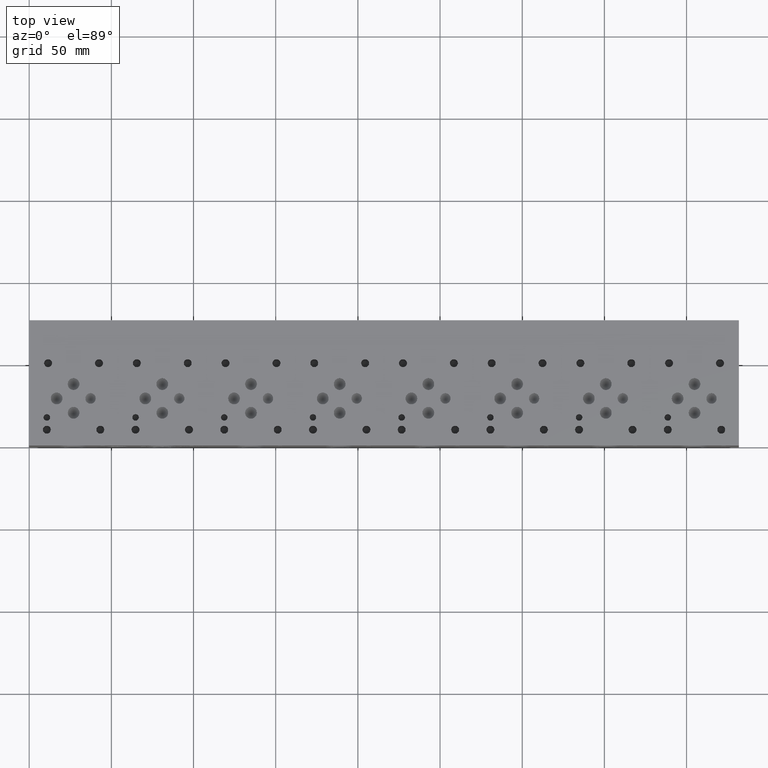
[diagram: clean part render]
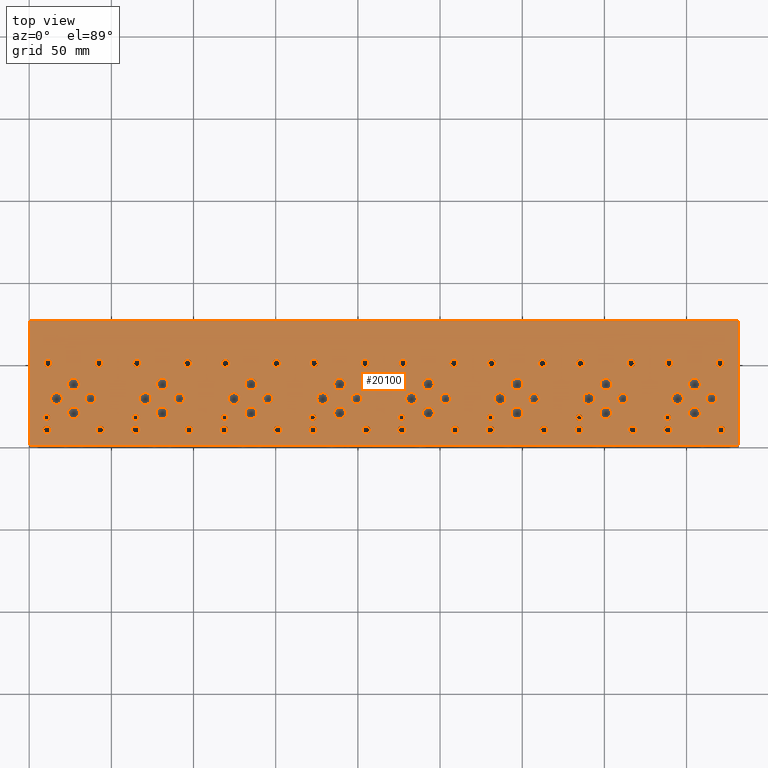
[diagram: same view with one face highlighted and labeled with its STEP entity id]
A machine part, top view. The second image highlights one B-rep face of the part: STEP entity #20100.
In plain terms, the highlighted planar face has unit normal (0, 0, 1).
Its self-contained STEP definition (entity closure, byte-faithful):
#462=CIRCLE('',#20889,1.9812);
#463=CIRCLE('',#20890,1.9812);
#466=CIRCLE('',#20895,1.9812);
#467=CIRCLE('',#20896,1.9812);
#470=CIRCLE('',#20901,1.9812);
#471=CIRCLE('',#20902,1.9812);
#474=CIRCLE('',#20907,1.9812);
#475=CIRCLE('',#20908,1.9812);
#478=CIRCLE('',#20913,1.9812);
#479=CIRCLE('',#20914,1.9812);
#482=CIRCLE('',#20919,1.9812);
#483=CIRCLE('',#20920,1.9812);
#486=CIRCLE('',#20925,1.9812);
#487=CIRCLE('',#20926,1.9812);
#490=CIRCLE('',#20931,3.175);
#491=CIRCLE('',#20932,3.175);
#494=CIRCLE('',#20937,3.175);
#495=CIRCLE('',#20938,3.175);
#498=CIRCLE('',#20943,3.175);
#499=CIRCLE('',#20944,3.175);
#502=CIRCLE('',#20949,3.175);
#503=CIRCLE('',#20950,3.175);
#506=CIRCLE('',#20955,3.175);
#507=CIRCLE('',#20956,3.175);
#510=CIRCLE('',#20961,3.175);
#511=CIRCLE('',#20962,3.175);
#514=CIRCLE('',#20967,3.175);
#515=CIRCLE('',#20968,3.175);
#518=CIRCLE('',#20973,3.175);
#519=CIRCLE('',#20974,3.175);
#522=CIRCLE('',#20979,3.5687);
#523=CIRCLE('',#20980,3.5687);
#526=CIRCLE('',#20985,3.5687);
#527=CIRCLE('',#20986,3.5687);
#530=CIRCLE('',#20991,3.5687);
#531=CIRCLE('',#20992,3.5687);
#534=CIRCLE('',#20997,3.5687);
#535=CIRCLE('',#20998,3.5687);
#538=CIRCLE('',#21003,3.5687);
#539=CIRCLE('',#21004,3.5687);
#542=CIRCLE('',#21009,3.5687);
#543=CIRCLE('',#21010,3.5687);
#546=CIRCLE('',#21015,3.5687);
#547=CIRCLE('',#21016,3.5687);
#550=CIRCLE('',#21021,3.5687);
#551=CIRCLE('',#21022,3.5687);
#554=CIRCLE('',#21027,3.5687);
#555=CIRCLE('',#21028,3.5687);
#558=CIRCLE('',#21033,3.5687);
#559=CIRCLE('',#21034,3.5687);
#562=CIRCLE('',#21039,3.5687);
#563=CIRCLE('',#21040,3.5687);
#566=CIRCLE('',#21045,3.5687);
#567=CIRCLE('',#21046,3.5687);
#570=CIRCLE('',#21051,3.5687);
#571=CIRCLE('',#21052,3.5687);
#574=CIRCLE('',#21057,3.5687);
#575=CIRCLE('',#21058,3.5687);
#578=CIRCLE('',#21063,3.5687);
#579=CIRCLE('',#21064,3.5687);
#582=CIRCLE('',#21069,3.5687);
#583=CIRCLE('',#21070,3.5687);
#586=CIRCLE('',#21075,3.5687);
#587=CIRCLE('',#21076,3.5687);
#590=CIRCLE('',#21081,3.5687);
#591=CIRCLE('',#21082,3.5687);
#594=CIRCLE('',#21087,3.5687);
#595=CIRCLE('',#21088,3.5687);
#598=CIRCLE('',#21093,3.5687);
#599=CIRCLE('',#21094,3.5687);
#602=CIRCLE('',#21099,3.5687);
#603=CIRCLE('',#21100,3.5687);
#606=CIRCLE('',#21105,3.5687);
#607=CIRCLE('',#21106,3.5687);
#610=CIRCLE('',#21111,3.5687);
#611=CIRCLE('',#21112,3.5687);
#614=CIRCLE('',#21117,3.5687);
#615=CIRCLE('',#21118,3.5687);
#618=CIRCLE('',#21123,1.9812);
#619=CIRCLE('',#21124,1.9812);
#625=CIRCLE('',#21133,2.413);
#626=CIRCLE('',#21134,2.413);
#632=CIRCLE('',#21144,2.413);
#633=CIRCLE('',#21145,2.413);
#639=CIRCLE('',#21155,2.413);
#640=CIRCLE('',#21156,2.413);
#646=CIRCLE('',#21166,2.413);
#647=CIRCLE('',#21167,2.413);
#653=CIRCLE('',#21177,2.413);
#654=CIRCLE('',#21178,2.413);
#660=CIRCLE('',#21188,2.413);
#661=CIRCLE('',#21189,2.413);
#667=CIRCLE('',#21199,2.413);
#668=CIRCLE('',#21200,2.413);
#674=CIRCLE('',#21210,2.413);
#675=CIRCLE('',#21211,2.413);
#681=CIRCLE('',#21221,2.413);
#682=CIRCLE('',#21222,2.413);
#688=CIRCLE('',#21232,2.413);
#689=CIRCLE('',#21233,2.413);
#695=CIRCLE('',#21243,2.413);
#696=CIRCLE('',#21244,2.413);
#702=CIRCLE('',#21254,2.413);
#703=CIRCLE('',#21255,2.413);
#709=CIRCLE('',#21265,2.413);
#710=CIRCLE('',#21266,2.413);
#716=CIRCLE('',#21276,2.413);
#717=CIRCLE('',#21277,2.413);
#723=CIRCLE('',#21287,2.413);
#724=CIRCLE('',#21288,2.413);
#730=CIRCLE('',#21298,2.413);
#731=CIRCLE('',#21299,2.413);
#737=CIRCLE('',#21309,2.413);
#738=CIRCLE('',#21310,2.413);
#744=CIRCLE('',#21320,2.413);
#745=CIRCLE('',#21321,2.413);
#751=CIRCLE('',#21331,2.413);
#752=CIRCLE('',#21332,2.413);
#758=CIRCLE('',#21342,2.413);
#759=CIRCLE('',#21343,2.413);
#765=CIRCLE('',#21353,2.413);
#766=CIRCLE('',#21354,2.413);
#772=CIRCLE('',#21364,2.413);
#773=CIRCLE('',#21365,2.413);
#779=CIRCLE('',#21375,2.413);
#780=CIRCLE('',#21376,2.413);
#786=CIRCLE('',#21386,2.413);
#787=CIRCLE('',#21387,2.413);
#793=CIRCLE('',#21397,2.413);
#794=CIRCLE('',#21398,2.413);
#800=CIRCLE('',#21408,2.413);
#801=CIRCLE('',#21409,2.413);
#807=CIRCLE('',#21419,2.413);
#808=CIRCLE('',#21420,2.413);
#814=CIRCLE('',#21430,2.413);
#815=CIRCLE('',#21431,2.413);
#821=CIRCLE('',#21441,2.413);
#822=CIRCLE('',#21442,2.413);
#828=CIRCLE('',#21452,2.413);
#829=CIRCLE('',#21453,2.413);
#835=CIRCLE('',#21463,2.413);
#836=CIRCLE('',#21464,2.413);
#842=CIRCLE('',#21474,2.413);
#843=CIRCLE('',#21475,2.413);
#1003=FACE_BOUND('',#3856,.T.);
#1004=FACE_BOUND('',#3857,.T.);
#1005=FACE_BOUND('',#3858,.T.);
#1006=FACE_BOUND('',#3859,.T.);
#1007=FACE_BOUND('',#3860,.T.);
#1008=FACE_BOUND('',#3861,.T.);
#1009=FACE_BOUND('',#3862,.T.);
#1010=FACE_BOUND('',#3863,.T.);
#1011=FACE_BOUND('',#3864,.T.);
#1012=FACE_BOUND('',#3865,.T.);
#1013=FACE_BOUND('',#3866,.T.);
#1014=FACE_BOUND('',#3867,.T.);
#1015=FACE_BOUND('',#3868,.T.);
#1016=FACE_BOUND('',#3869,.T.);
#1017=FACE_BOUND('',#3870,.T.);
#1018=FACE_BOUND('',#3871,.T.);
#1019=FACE_BOUND('',#3872,.T.);
#1020=FACE_BOUND('',#3873,.T.);
#1021=FACE_BOUND('',#3874,.T.);
#1022=FACE_BOUND('',#3875,.T.);
#1023=FACE_BOUND('',#3876,.T.);
#1024=FACE_BOUND('',#3877,.T.);
#1025=FACE_BOUND('',#3878,.T.);
#1026=FACE_BOUND('',#3879,.T.);
#1027=FACE_BOUND('',#3880,.T.);
#1028=FACE_BOUND('',#3881,.T.);
#1029=FACE_BOUND('',#3882,.T.);
#1030=FACE_BOUND('',#3883,.T.);
#1031=FACE_BOUND('',#3884,.T.);
#1032=FACE_BOUND('',#3885,.T.);
#1033=FACE_BOUND('',#3886,.T.);
#1034=FACE_BOUND('',#3887,.T.);
#1035=FACE_BOUND('',#3888,.T.);
#1036=FACE_BOUND('',#3889,.T.);
#1037=FACE_BOUND('',#3890,.T.);
#1038=FACE_BOUND('',#3891,.T.);
#1039=FACE_BOUND('',#3892,.T.);
#1040=FACE_BOUND('',#3893,.T.);
#1041=FACE_BOUND('',#3894,.T.);
#1042=FACE_BOUND('',#3895,.T.);
#1043=FACE_BOUND('',#3896,.T.);
#1044=FACE_BOUND('',#3897,.T.);
#1045=FACE_BOUND('',#3898,.T.);
#1046=FACE_BOUND('',#3899,.T.);
#1047=FACE_BOUND('',#3900,.T.);
#1048=FACE_BOUND('',#3901,.T.);
#1049=FACE_BOUND('',#3902,.T.);
#1050=FACE_BOUND('',#3903,.T.);
#1051=FACE_BOUND('',#3904,.T.);
#1052=FACE_BOUND('',#3905,.T.);
#1053=FACE_BOUND('',#3906,.T.);
#1054=FACE_BOUND('',#3907,.T.);
#1055=FACE_BOUND('',#3908,.T.);
#1056=FACE_BOUND('',#3909,.T.);
#1057=FACE_BOUND('',#3910,.T.);
#1058=FACE_BOUND('',#3911,.T.);
#1059=FACE_BOUND('',#3912,.T.);
#1060=FACE_BOUND('',#3913,.T.);
#1061=FACE_BOUND('',#3914,.T.);
#1062=FACE_BOUND('',#3915,.T.);
#1063=FACE_BOUND('',#3916,.T.);
#1064=FACE_BOUND('',#3917,.T.);
#1065=FACE_BOUND('',#3918,.T.);
#1066=FACE_BOUND('',#3919,.T.);
#1067=FACE_BOUND('',#3920,.T.);
#1068=FACE_BOUND('',#3921,.T.);
#1069=FACE_BOUND('',#3922,.T.);
#1070=FACE_BOUND('',#3923,.T.);
#1071=FACE_BOUND('',#3924,.T.);
#1072=FACE_BOUND('',#3925,.T.);
#1073=FACE_BOUND('',#3926,.T.);
#1074=FACE_BOUND('',#3927,.T.);
#1610=PLANE('',#21481);
#2653=FACE_OUTER_BOUND('',#3855,.T.);
#3855=EDGE_LOOP('',(#17975,#17976,#17977,#17978));
#3856=EDGE_LOOP('',(#17979,#17980));
#3857=EDGE_LOOP('',(#17981,#17982));
#3858=EDGE_LOOP('',(#17983,#17984));
#3859=EDGE_LOOP('',(#17985,#17986));
#3860=EDGE_LOOP('',(#17987,#17988));
#3861=EDGE_LOOP('',(#17989,#17990));
#3862=EDGE_LOOP('',(#17991,#17992));
#3863=EDGE_LOOP('',(#17993,#17994));
#3864=EDGE_LOOP('',(#17995,#17996));
#3865=EDGE_LOOP('',(#17997,#17998));
#3866=EDGE_LOOP('',(#17999,#18000));
#3867=EDGE_LOOP('',(#18001,#18002));
#3868=EDGE_LOOP('',(#18003,#18004));
#3869=EDGE_LOOP('',(#18005,#18006));
#3870=EDGE_LOOP('',(#18007,#18008));
#3871=EDGE_LOOP('',(#18009,#18010));
#3872=EDGE_LOOP('',(#18011,#18012));
#3873=EDGE_LOOP('',(#18013,#18014));
#3874=EDGE_LOOP('',(#18015,#18016));
#3875=EDGE_LOOP('',(#18017,#18018));
#3876=EDGE_LOOP('',(#18019,#18020));
#3877=EDGE_LOOP('',(#18021,#18022));
#3878=EDGE_LOOP('',(#18023,#18024));
#3879=EDGE_LOOP('',(#18025,#18026));
#3880=EDGE_LOOP('',(#18027,#18028));
#3881=EDGE_LOOP('',(#18029,#18030));
#3882=EDGE_LOOP('',(#18031,#18032));
#3883=EDGE_LOOP('',(#18033,#18034));
#3884=EDGE_LOOP('',(#18035,#18036));
#3885=EDGE_LOOP('',(#18037,#18038));
#3886=EDGE_LOOP('',(#18039,#18040));
#3887=EDGE_LOOP('',(#18041,#18042));
#3888=EDGE_LOOP('',(#18043,#18044));
#3889=EDGE_LOOP('',(#18045,#18046));
#3890=EDGE_LOOP('',(#18047,#18048));
#3891=EDGE_LOOP('',(#18049,#18050));
#3892=EDGE_LOOP('',(#18051,#18052));
#3893=EDGE_LOOP('',(#18053,#18054));
#3894=EDGE_LOOP('',(#18055,#18056));
#3895=EDGE_LOOP('',(#18057,#18058));
#3896=EDGE_LOOP('',(#18059,#18060));
#3897=EDGE_LOOP('',(#18061,#18062));
#3898=EDGE_LOOP('',(#18063,#18064));
#3899=EDGE_LOOP('',(#18065,#18066));
#3900=EDGE_LOOP('',(#18067,#18068));
#3901=EDGE_LOOP('',(#18069,#18070));
#3902=EDGE_LOOP('',(#18071,#18072));
#3903=EDGE_LOOP('',(#18073,#18074));
#3904=EDGE_LOOP('',(#18075,#18076));
#3905=EDGE_LOOP('',(#18077,#18078));
#3906=EDGE_LOOP('',(#18079,#18080));
#3907=EDGE_LOOP('',(#18081,#18082));
#3908=EDGE_LOOP('',(#18083,#18084));
#3909=EDGE_LOOP('',(#18085,#18086));
#3910=EDGE_LOOP('',(#18087,#18088));
#3911=EDGE_LOOP('',(#18089,#18090));
#3912=EDGE_LOOP('',(#18091,#18092));
#3913=EDGE_LOOP('',(#18093,#18094));
#3914=EDGE_LOOP('',(#18095,#18096));
#3915=EDGE_LOOP('',(#18097,#18098));
#3916=EDGE_LOOP('',(#18099,#18100));
#3917=EDGE_LOOP('',(#18101,#18102));
#3918=EDGE_LOOP('',(#18103,#18104));
#3919=EDGE_LOOP('',(#18105,#18106));
#3920=EDGE_LOOP('',(#18107,#18108));
#3921=EDGE_LOOP('',(#18109,#18110));
#3922=EDGE_LOOP('',(#18111,#18112));
#3923=EDGE_LOOP('',(#18113,#18114));
#3924=EDGE_LOOP('',(#18115,#18116));
#3925=EDGE_LOOP('',(#18117,#18118));
#3926=EDGE_LOOP('',(#18119,#18120));
#3927=EDGE_LOOP('',(#18121,#18122));
#3975=LINE('',#26263,#5684);
#5293=LINE('',#32861,#7002);
#5351=LINE('',#33132,#7060);
#5637=LINE('',#34916,#7346);
#5684=VECTOR('',#21555,10.);
#7002=VECTOR('',#23809,10.);
#7060=VECTOR('',#23921,10.);
#7346=VECTOR('',#25919,10.);
#7891=VERTEX_POINT('',#26260);
#7892=VERTEX_POINT('',#26262);
#9104=VERTEX_POINT('',#32859);
#9162=VERTEX_POINT('',#33131);
#9352=VERTEX_POINT('',#33697);
#9353=VERTEX_POINT('',#33698);
#9357=VERTEX_POINT('',#33710);
#9358=VERTEX_POINT('',#33711);
#9362=VERTEX_POINT('',#33723);
#9363=VERTEX_POINT('',#33724);
#9367=VERTEX_POINT('',#33736);
#9368=VERTEX_POINT('',#33737);
#9372=VERTEX_POINT('',#33749);
#9373=VERTEX_POINT('',#33750);
#9377=VERTEX_POINT('',#33762);
#9378=VERTEX_POINT('',#33763);
#9382=VERTEX_POINT('',#33775);
#9383=VERTEX_POINT('',#33776);
#9387=VERTEX_POINT('',#33788);
#9388=VERTEX_POINT('',#33789);
#9392=VERTEX_POINT('',#33801);
#9393=VERTEX_POINT('',#33802);
#9397=VERTEX_POINT('',#33814);
#9398=VERTEX_POINT('',#33815);
#9402=VERTEX_POINT('',#33827);
#9403=VERTEX_POINT('',#33828);
#9407=VERTEX_POINT('',#33840);
#9408=VERTEX_POINT('',#33841);
#9412=VERTEX_POINT('',#33853);
#9413=VERTEX_POINT('',#33854);
#9417=VERTEX_POINT('',#33866);
#9418=VERTEX_POINT('',#33867);
#9422=VERTEX_POINT('',#33879);
#9423=VERTEX_POINT('',#33880);
#9427=VERTEX_POINT('',#33892);
#9428=VERTEX_POINT('',#33893);
#9432=VERTEX_POINT('',#33905);
#9433=VERTEX_POINT('',#33906);
#9437=VERTEX_POINT('',#33918);
#9438=VERTEX_POINT('',#33919);
#9442=VERTEX_POINT('',#33931);
#9443=VERTEX_POINT('',#33932);
#9447=VERTEX_POINT('',#33944);
#9448=VERTEX_POINT('',#33945);
#9452=VERTEX_POINT('',#33957);
#9453=VERTEX_POINT('',#33958);
#9457=VERTEX_POINT('',#33970);
#9458=VERTEX_POINT('',#33971);
#9462=VERTEX_POINT('',#33983);
#9463=VERTEX_POINT('',#33984);
#9467=VERTEX_POINT('',#33996);
#9468=VERTEX_POINT('',#33997);
#9472=VERTEX_POINT('',#34009);
#9473=VERTEX_POINT('',#34010);
#9477=VERTEX_POINT('',#34022);
#9478=VERTEX_POINT('',#34023);
#9482=VERTEX_POINT('',#34035);
#9483=VERTEX_POINT('',#34036);
#9487=VERTEX_POINT('',#34048);
#9488=VERTEX_POINT('',#34049);
#9492=VERTEX_POINT('',#34061);
#9493=VERTEX_POINT('',#34062);
#9497=VERTEX_POINT('',#34074);
#9498=VERTEX_POINT('',#34075);
#9502=VERTEX_POINT('',#34087);
#9503=VERTEX_POINT('',#34088);
#9507=VERTEX_POINT('',#34100);
#9508=VERTEX_POINT('',#34101);
#9512=VERTEX_POINT('',#34113);
#9513=VERTEX_POINT('',#34114);
#9517=VERTEX_POINT('',#34126);
#9518=VERTEX_POINT('',#34127);
#9522=VERTEX_POINT('',#34139);
#9523=VERTEX_POINT('',#34140);
#9527=VERTEX_POINT('',#34152);
#9528=VERTEX_POINT('',#34153);
#9532=VERTEX_POINT('',#34165);
#9533=VERTEX_POINT('',#34166);
#9537=VERTEX_POINT('',#34178);
#9538=VERTEX_POINT('',#34179);
#9542=VERTEX_POINT('',#34191);
#9543=VERTEX_POINT('',#34192);
#9547=VERTEX_POINT('',#34204);
#9548=VERTEX_POINT('',#34205);
#9555=VERTEX_POINT('',#34224);
#9556=VERTEX_POINT('',#34225);
#9563=VERTEX_POINT('',#34246);
#9564=VERTEX_POINT('',#34247);
#9571=VERTEX_POINT('',#34268);
#9572=VERTEX_POINT('',#34269);
#9579=VERTEX_POINT('',#34290);
#9580=VERTEX_POINT('',#34291);
#9587=VERTEX_POINT('',#34312);
#9588=VERTEX_POINT('',#34313);
#9595=VERTEX_POINT('',#34334);
#9596=VERTEX_POINT('',#34335);
#9603=VERTEX_POINT('',#34356);
#9604=VERTEX_POINT('',#34357);
#9611=VERTEX_POINT('',#34378);
#9612=VERTEX_POINT('',#34379);
#9619=VERTEX_POINT('',#34400);
#9620=VERTEX_POINT('',#34401);
#9627=VERTEX_POINT('',#34422);
#9628=VERTEX_POINT('',#34423);
#9635=VERTEX_POINT('',#34444);
#9636=VERTEX_POINT('',#34445);
#9643=VERTEX_POINT('',#34466);
#9644=VERTEX_POINT('',#34467);
#9651=VERTEX_POINT('',#34488);
#9652=VERTEX_POINT('',#34489);
#9659=VERTEX_POINT('',#34510);
#9660=VERTEX_POINT('',#34511);
#9667=VERTEX_POINT('',#34532);
#9668=VERTEX_POINT('',#34533);
#9675=VERTEX_POINT('',#34554);
#9676=VERTEX_POINT('',#34555);
#9683=VERTEX_POINT('',#34576);
#9684=VERTEX_POINT('',#34577);
#9691=VERTEX_POINT('',#34598);
#9692=VERTEX_POINT('',#34599);
#9699=VERTEX_POINT('',#34620);
#9700=VERTEX_POINT('',#34621);
#9707=VERTEX_POINT('',#34642);
#9708=VERTEX_POINT('',#34643);
#9715=VERTEX_POINT('',#34664);
#9716=VERTEX_POINT('',#34665);
#9723=VERTEX_POINT('',#34686);
#9724=VERTEX_POINT('',#34687);
#9731=VERTEX_POINT('',#34708);
#9732=VERTEX_POINT('',#34709);
#9739=VERTEX_POINT('',#34730);
#9740=VERTEX_POINT('',#34731);
#9747=VERTEX_POINT('',#34752);
#9748=VERTEX_POINT('',#34753);
#9755=VERTEX_POINT('',#34774);
#9756=VERTEX_POINT('',#34775);
#9763=VERTEX_POINT('',#34796);
#9764=VERTEX_POINT('',#34797);
#9771=VERTEX_POINT('',#34818);
#9772=VERTEX_POINT('',#34819);
#9779=VERTEX_POINT('',#34840);
#9780=VERTEX_POINT('',#34841);
#9787=VERTEX_POINT('',#34862);
#9788=VERTEX_POINT('',#34863);
#9795=VERTEX_POINT('',#34884);
#9796=VERTEX_POINT('',#34885);
#9803=VERTEX_POINT('',#34906);
#9804=VERTEX_POINT('',#34907);
#9879=EDGE_CURVE('',#7892,#7891,#3975,.T.);
#11681=EDGE_CURVE('',#7891,#9104,#5293,.T.);
#11763=EDGE_CURVE('',#9162,#7892,#5351,.T.);
#12020=EDGE_CURVE('',#9352,#9353,#462,.T.);
#12021=EDGE_CURVE('',#9353,#9352,#463,.T.);
#12026=EDGE_CURVE('',#9357,#9358,#466,.T.);
#12027=EDGE_CURVE('',#9358,#9357,#467,.T.);
#12032=EDGE_CURVE('',#9362,#9363,#470,.T.);
#12033=EDGE_CURVE('',#9363,#9362,#471,.T.);
#12038=EDGE_CURVE('',#9367,#9368,#474,.T.);
#12039=EDGE_CURVE('',#9368,#9367,#475,.T.);
#12044=EDGE_CURVE('',#9372,#9373,#478,.T.);
#12045=EDGE_CURVE('',#9373,#9372,#479,.T.);
#12050=EDGE_CURVE('',#9377,#9378,#482,.T.);
#12051=EDGE_CURVE('',#9378,#9377,#483,.T.);
#12056=EDGE_CURVE('',#9382,#9383,#486,.T.);
#12057=EDGE_CURVE('',#9383,#9382,#487,.T.);
#12062=EDGE_CURVE('',#9387,#9388,#490,.T.);
#12063=EDGE_CURVE('',#9388,#9387,#491,.T.);
#12068=EDGE_CURVE('',#9392,#9393,#494,.T.);
#12069=EDGE_CURVE('',#9393,#9392,#495,.T.);
#12074=EDGE_CURVE('',#9397,#9398,#498,.T.);
#12075=EDGE_CURVE('',#9398,#9397,#499,.T.);
#12080=EDGE_CURVE('',#9402,#9403,#502,.T.);
#12081=EDGE_CURVE('',#9403,#9402,#503,.T.);
#12086=EDGE_CURVE('',#9407,#9408,#506,.T.);
#12087=EDGE_CURVE('',#9408,#9407,#507,.T.);
#12092=EDGE_CURVE('',#9412,#9413,#510,.T.);
#12093=EDGE_CURVE('',#9413,#9412,#511,.T.);
#12098=EDGE_CURVE('',#9417,#9418,#514,.T.);
#12099=EDGE_CURVE('',#9418,#9417,#515,.T.);
#12104=EDGE_CURVE('',#9422,#9423,#518,.T.);
#12105=EDGE_CURVE('',#9423,#9422,#519,.T.);
#12110=EDGE_CURVE('',#9427,#9428,#522,.T.);
#12111=EDGE_CURVE('',#9428,#9427,#523,.T.);
#12116=EDGE_CURVE('',#9432,#9433,#526,.T.);
#12117=EDGE_CURVE('',#9433,#9432,#527,.T.);
#12122=EDGE_CURVE('',#9437,#9438,#530,.T.);
#12123=EDGE_CURVE('',#9438,#9437,#531,.T.);
#12128=EDGE_CURVE('',#9442,#9443,#534,.T.);
#12129=EDGE_CURVE('',#9443,#9442,#535,.T.);
#12134=EDGE_CURVE('',#9447,#9448,#538,.T.);
#12135=EDGE_CURVE('',#9448,#9447,#539,.T.);
#12140=EDGE_CURVE('',#9452,#9453,#542,.T.);
#12141=EDGE_CURVE('',#9453,#9452,#543,.T.);
#12146=EDGE_CURVE('',#9457,#9458,#546,.T.);
#12147=EDGE_CURVE('',#9458,#9457,#547,.T.);
#12152=EDGE_CURVE('',#9462,#9463,#550,.T.);
#12153=EDGE_CURVE('',#9463,#9462,#551,.T.);
#12158=EDGE_CURVE('',#9467,#9468,#554,.T.);
#12159=EDGE_CURVE('',#9468,#9467,#555,.T.);
#12164=EDGE_CURVE('',#9472,#9473,#558,.T.);
#12165=EDGE_CURVE('',#9473,#9472,#559,.T.);
#12170=EDGE_CURVE('',#9477,#9478,#562,.T.);
#12171=EDGE_CURVE('',#9478,#9477,#563,.T.);
#12176=EDGE_CURVE('',#9482,#9483,#566,.T.);
#12177=EDGE_CURVE('',#9483,#9482,#567,.T.);
#12182=EDGE_CURVE('',#9487,#9488,#570,.T.);
#12183=EDGE_CURVE('',#9488,#9487,#571,.T.);
#12188=EDGE_CURVE('',#9492,#9493,#574,.T.);
#12189=EDGE_CURVE('',#9493,#9492,#575,.T.);
#12194=EDGE_CURVE('',#9497,#9498,#578,.T.);
#12195=EDGE_CURVE('',#9498,#9497,#579,.T.);
#12200=EDGE_CURVE('',#9502,#9503,#582,.T.);
#12201=EDGE_CURVE('',#9503,#9502,#583,.T.);
#12206=EDGE_CURVE('',#9507,#9508,#586,.T.);
#12207=EDGE_CURVE('',#9508,#9507,#587,.T.);
#12212=EDGE_CURVE('',#9512,#9513,#590,.T.);
#12213=EDGE_CURVE('',#9513,#9512,#591,.T.);
#12218=EDGE_CURVE('',#9517,#9518,#594,.T.);
#12219=EDGE_CURVE('',#9518,#9517,#595,.T.);
#12224=EDGE_CURVE('',#9522,#9523,#598,.T.);
#12225=EDGE_CURVE('',#9523,#9522,#599,.T.);
#12230=EDGE_CURVE('',#9527,#9528,#602,.T.);
#12231=EDGE_CURVE('',#9528,#9527,#603,.T.);
#12236=EDGE_CURVE('',#9532,#9533,#606,.T.);
#12237=EDGE_CURVE('',#9533,#9532,#607,.T.);
#12242=EDGE_CURVE('',#9537,#9538,#610,.T.);
#12243=EDGE_CURVE('',#9538,#9537,#611,.T.);
#12248=EDGE_CURVE('',#9542,#9543,#614,.T.);
#12249=EDGE_CURVE('',#9543,#9542,#615,.T.);
#12254=EDGE_CURVE('',#9547,#9548,#618,.T.);
#12255=EDGE_CURVE('',#9548,#9547,#619,.T.);
#12263=EDGE_CURVE('',#9555,#9556,#625,.T.);
#12264=EDGE_CURVE('',#9556,#9555,#626,.T.);
#12273=EDGE_CURVE('',#9563,#9564,#632,.T.);
#12274=EDGE_CURVE('',#9564,#9563,#633,.T.);
#12283=EDGE_CURVE('',#9571,#9572,#639,.T.);
#12284=EDGE_CURVE('',#9572,#9571,#640,.T.);
#12293=EDGE_CURVE('',#9579,#9580,#646,.T.);
#12294=EDGE_CURVE('',#9580,#9579,#647,.T.);
#12303=EDGE_CURVE('',#9587,#9588,#653,.T.);
#12304=EDGE_CURVE('',#9588,#9587,#654,.T.);
#12313=EDGE_CURVE('',#9595,#9596,#660,.T.);
#12314=EDGE_CURVE('',#9596,#9595,#661,.T.);
#12323=EDGE_CURVE('',#9603,#9604,#667,.T.);
#12324=EDGE_CURVE('',#9604,#9603,#668,.T.);
#12333=EDGE_CURVE('',#9611,#9612,#674,.T.);
#12334=EDGE_CURVE('',#9612,#9611,#675,.T.);
#12343=EDGE_CURVE('',#9619,#9620,#681,.T.);
#12344=EDGE_CURVE('',#9620,#9619,#682,.T.);
#12353=EDGE_CURVE('',#9627,#9628,#688,.T.);
#12354=EDGE_CURVE('',#9628,#9627,#689,.T.);
#12363=EDGE_CURVE('',#9635,#9636,#695,.T.);
#12364=EDGE_CURVE('',#9636,#9635,#696,.T.);
#12373=EDGE_CURVE('',#9643,#9644,#702,.T.);
#12374=EDGE_CURVE('',#9644,#9643,#703,.T.);
#12383=EDGE_CURVE('',#9651,#9652,#709,.T.);
#12384=EDGE_CURVE('',#9652,#9651,#710,.T.);
#12393=EDGE_CURVE('',#9659,#9660,#716,.T.);
#12394=EDGE_CURVE('',#9660,#9659,#717,.T.);
#12403=EDGE_CURVE('',#9667,#9668,#723,.T.);
#12404=EDGE_CURVE('',#9668,#9667,#724,.T.);
#12413=EDGE_CURVE('',#9675,#9676,#730,.T.);
#12414=EDGE_CURVE('',#9676,#9675,#731,.T.);
#12423=EDGE_CURVE('',#9683,#9684,#737,.T.);
#12424=EDGE_CURVE('',#9684,#9683,#738,.T.);
#12433=EDGE_CURVE('',#9691,#9692,#744,.T.);
#12434=EDGE_CURVE('',#9692,#9691,#745,.T.);
#12443=EDGE_CURVE('',#9699,#9700,#751,.T.);
#12444=EDGE_CURVE('',#9700,#9699,#752,.T.);
#12453=EDGE_CURVE('',#9707,#9708,#758,.T.);
#12454=EDGE_CURVE('',#9708,#9707,#759,.T.);
#12463=EDGE_CURVE('',#9715,#9716,#765,.T.);
#12464=EDGE_CURVE('',#9716,#9715,#766,.T.);
#12473=EDGE_CURVE('',#9723,#9724,#772,.T.);
#12474=EDGE_CURVE('',#9724,#9723,#773,.T.);
#12483=EDGE_CURVE('',#9731,#9732,#779,.T.);
#12484=EDGE_CURVE('',#9732,#9731,#780,.T.);
#12493=EDGE_CURVE('',#9739,#9740,#786,.T.);
#12494=EDGE_CURVE('',#9740,#9739,#787,.T.);
#12503=EDGE_CURVE('',#9747,#9748,#793,.T.);
#12504=EDGE_CURVE('',#9748,#9747,#794,.T.);
#12513=EDGE_CURVE('',#9755,#9756,#800,.T.);
#12514=EDGE_CURVE('',#9756,#9755,#801,.T.);
#12523=EDGE_CURVE('',#9763,#9764,#807,.T.);
#12524=EDGE_CURVE('',#9764,#9763,#808,.T.);
#12533=EDGE_CURVE('',#9771,#9772,#814,.T.);
#12534=EDGE_CURVE('',#9772,#9771,#815,.T.);
#12543=EDGE_CURVE('',#9779,#9780,#821,.T.);
#12544=EDGE_CURVE('',#9780,#9779,#822,.T.);
#12553=EDGE_CURVE('',#9787,#9788,#828,.T.);
#12554=EDGE_CURVE('',#9788,#9787,#829,.T.);
#12563=EDGE_CURVE('',#9795,#9796,#835,.T.);
#12564=EDGE_CURVE('',#9796,#9795,#836,.T.);
#12573=EDGE_CURVE('',#9803,#9804,#842,.T.);
#12574=EDGE_CURVE('',#9804,#9803,#843,.T.);
#12578=EDGE_CURVE('',#9104,#9162,#5637,.T.);
#17975=ORIENTED_EDGE('',*,*,#9879,.T.);
#17976=ORIENTED_EDGE('',*,*,#11681,.T.);
#17977=ORIENTED_EDGE('',*,*,#12578,.T.);
#17978=ORIENTED_EDGE('',*,*,#11763,.T.);
#17979=ORIENTED_EDGE('',*,*,#12020,.T.);
#17980=ORIENTED_EDGE('',*,*,#12021,.T.);
#17981=ORIENTED_EDGE('',*,*,#12026,.T.);
#17982=ORIENTED_EDGE('',*,*,#12027,.T.);
#17983=ORIENTED_EDGE('',*,*,#12032,.T.);
#17984=ORIENTED_EDGE('',*,*,#12033,.T.);
#17985=ORIENTED_EDGE('',*,*,#12038,.T.);
#17986=ORIENTED_EDGE('',*,*,#12039,.T.);
#17987=ORIENTED_EDGE('',*,*,#12044,.T.);
#17988=ORIENTED_EDGE('',*,*,#12045,.T.);
#17989=ORIENTED_EDGE('',*,*,#12050,.T.);
#17990=ORIENTED_EDGE('',*,*,#12051,.T.);
#17991=ORIENTED_EDGE('',*,*,#12056,.T.);
#17992=ORIENTED_EDGE('',*,*,#12057,.T.);
#17993=ORIENTED_EDGE('',*,*,#12062,.T.);
#17994=ORIENTED_EDGE('',*,*,#12063,.T.);
#17995=ORIENTED_EDGE('',*,*,#12068,.T.);
#17996=ORIENTED_EDGE('',*,*,#12069,.T.);
#17997=ORIENTED_EDGE('',*,*,#12074,.T.);
#17998=ORIENTED_EDGE('',*,*,#12075,.T.);
#17999=ORIENTED_EDGE('',*,*,#12080,.T.);
#18000=ORIENTED_EDGE('',*,*,#12081,.T.);
#18001=ORIENTED_EDGE('',*,*,#12086,.T.);
#18002=ORIENTED_EDGE('',*,*,#12087,.T.);
#18003=ORIENTED_EDGE('',*,*,#12092,.T.);
#18004=ORIENTED_EDGE('',*,*,#12093,.T.);
#18005=ORIENTED_EDGE('',*,*,#12098,.T.);
#18006=ORIENTED_EDGE('',*,*,#12099,.T.);
#18007=ORIENTED_EDGE('',*,*,#12104,.T.);
#18008=ORIENTED_EDGE('',*,*,#12105,.T.);
#18009=ORIENTED_EDGE('',*,*,#12110,.T.);
#18010=ORIENTED_EDGE('',*,*,#12111,.T.);
#18011=ORIENTED_EDGE('',*,*,#12116,.T.);
#18012=ORIENTED_EDGE('',*,*,#12117,.T.);
#18013=ORIENTED_EDGE('',*,*,#12122,.T.);
#18014=ORIENTED_EDGE('',*,*,#12123,.T.);
#18015=ORIENTED_EDGE('',*,*,#12128,.T.);
#18016=ORIENTED_EDGE('',*,*,#12129,.T.);
#18017=ORIENTED_EDGE('',*,*,#12134,.T.);
#18018=ORIENTED_EDGE('',*,*,#12135,.T.);
#18019=ORIENTED_EDGE('',*,*,#12140,.T.);
#18020=ORIENTED_EDGE('',*,*,#12141,.T.);
#18021=ORIENTED_EDGE('',*,*,#12146,.T.);
#18022=ORIENTED_EDGE('',*,*,#12147,.T.);
#18023=ORIENTED_EDGE('',*,*,#12152,.T.);
#18024=ORIENTED_EDGE('',*,*,#12153,.T.);
#18025=ORIENTED_EDGE('',*,*,#12158,.T.);
#18026=ORIENTED_EDGE('',*,*,#12159,.T.);
#18027=ORIENTED_EDGE('',*,*,#12164,.T.);
#18028=ORIENTED_EDGE('',*,*,#12165,.T.);
#18029=ORIENTED_EDGE('',*,*,#12170,.T.);
#18030=ORIENTED_EDGE('',*,*,#12171,.T.);
#18031=ORIENTED_EDGE('',*,*,#12176,.T.);
#18032=ORIENTED_EDGE('',*,*,#12177,.T.);
#18033=ORIENTED_EDGE('',*,*,#12182,.T.);
#18034=ORIENTED_EDGE('',*,*,#12183,.T.);
#18035=ORIENTED_EDGE('',*,*,#12188,.T.);
#18036=ORIENTED_EDGE('',*,*,#12189,.T.);
#18037=ORIENTED_EDGE('',*,*,#12194,.T.);
#18038=ORIENTED_EDGE('',*,*,#12195,.T.);
#18039=ORIENTED_EDGE('',*,*,#12200,.T.);
#18040=ORIENTED_EDGE('',*,*,#12201,.T.);
#18041=ORIENTED_EDGE('',*,*,#12206,.T.);
#18042=ORIENTED_EDGE('',*,*,#12207,.T.);
#18043=ORIENTED_EDGE('',*,*,#12212,.T.);
#18044=ORIENTED_EDGE('',*,*,#12213,.T.);
#18045=ORIENTED_EDGE('',*,*,#12218,.T.);
#18046=ORIENTED_EDGE('',*,*,#12219,.T.);
#18047=ORIENTED_EDGE('',*,*,#12224,.T.);
#18048=ORIENTED_EDGE('',*,*,#12225,.T.);
#18049=ORIENTED_EDGE('',*,*,#12230,.T.);
#18050=ORIENTED_EDGE('',*,*,#12231,.T.);
#18051=ORIENTED_EDGE('',*,*,#12236,.T.);
#18052=ORIENTED_EDGE('',*,*,#12237,.T.);
#18053=ORIENTED_EDGE('',*,*,#12242,.T.);
#18054=ORIENTED_EDGE('',*,*,#12243,.T.);
#18055=ORIENTED_EDGE('',*,*,#12248,.T.);
#18056=ORIENTED_EDGE('',*,*,#12249,.T.);
#18057=ORIENTED_EDGE('',*,*,#12254,.T.);
#18058=ORIENTED_EDGE('',*,*,#12255,.T.);
#18059=ORIENTED_EDGE('',*,*,#12263,.T.);
#18060=ORIENTED_EDGE('',*,*,#12264,.T.);
#18061=ORIENTED_EDGE('',*,*,#12273,.T.);
#18062=ORIENTED_EDGE('',*,*,#12274,.T.);
#18063=ORIENTED_EDGE('',*,*,#12283,.T.);
#18064=ORIENTED_EDGE('',*,*,#12284,.T.);
#18065=ORIENTED_EDGE('',*,*,#12293,.T.);
#18066=ORIENTED_EDGE('',*,*,#12294,.T.);
#18067=ORIENTED_EDGE('',*,*,#12303,.T.);
#18068=ORIENTED_EDGE('',*,*,#12304,.T.);
#18069=ORIENTED_EDGE('',*,*,#12313,.T.);
#18070=ORIENTED_EDGE('',*,*,#12314,.T.);
#18071=ORIENTED_EDGE('',*,*,#12323,.T.);
#18072=ORIENTED_EDGE('',*,*,#12324,.T.);
#18073=ORIENTED_EDGE('',*,*,#12333,.T.);
#18074=ORIENTED_EDGE('',*,*,#12334,.T.);
#18075=ORIENTED_EDGE('',*,*,#12343,.T.);
#18076=ORIENTED_EDGE('',*,*,#12344,.T.);
#18077=ORIENTED_EDGE('',*,*,#12353,.T.);
#18078=ORIENTED_EDGE('',*,*,#12354,.T.);
#18079=ORIENTED_EDGE('',*,*,#12363,.T.);
#18080=ORIENTED_EDGE('',*,*,#12364,.T.);
#18081=ORIENTED_EDGE('',*,*,#12373,.T.);
#18082=ORIENTED_EDGE('',*,*,#12374,.T.);
#18083=ORIENTED_EDGE('',*,*,#12383,.T.);
#18084=ORIENTED_EDGE('',*,*,#12384,.T.);
#18085=ORIENTED_EDGE('',*,*,#12393,.T.);
#18086=ORIENTED_EDGE('',*,*,#12394,.T.);
#18087=ORIENTED_EDGE('',*,*,#12403,.T.);
#18088=ORIENTED_EDGE('',*,*,#12404,.T.);
#18089=ORIENTED_EDGE('',*,*,#12413,.T.);
#18090=ORIENTED_EDGE('',*,*,#12414,.T.);
#18091=ORIENTED_EDGE('',*,*,#12423,.T.);
#18092=ORIENTED_EDGE('',*,*,#12424,.T.);
#18093=ORIENTED_EDGE('',*,*,#12433,.T.);
#18094=ORIENTED_EDGE('',*,*,#12434,.T.);
#18095=ORIENTED_EDGE('',*,*,#12443,.T.);
#18096=ORIENTED_EDGE('',*,*,#12444,.T.);
#18097=ORIENTED_EDGE('',*,*,#12453,.T.);
#18098=ORIENTED_EDGE('',*,*,#12454,.T.);
#18099=ORIENTED_EDGE('',*,*,#12463,.T.);
#18100=ORIENTED_EDGE('',*,*,#12464,.T.);
#18101=ORIENTED_EDGE('',*,*,#12473,.T.);
#18102=ORIENTED_EDGE('',*,*,#12474,.T.);
#18103=ORIENTED_EDGE('',*,*,#12483,.T.);
#18104=ORIENTED_EDGE('',*,*,#12484,.T.);
#18105=ORIENTED_EDGE('',*,*,#12493,.T.);
#18106=ORIENTED_EDGE('',*,*,#12494,.T.);
#18107=ORIENTED_EDGE('',*,*,#12503,.T.);
#18108=ORIENTED_EDGE('',*,*,#12504,.T.);
#18109=ORIENTED_EDGE('',*,*,#12513,.T.);
#18110=ORIENTED_EDGE('',*,*,#12514,.T.);
#18111=ORIENTED_EDGE('',*,*,#12523,.T.);
#18112=ORIENTED_EDGE('',*,*,#12524,.T.);
#18113=ORIENTED_EDGE('',*,*,#12533,.T.);
#18114=ORIENTED_EDGE('',*,*,#12534,.T.);
#18115=ORIENTED_EDGE('',*,*,#12543,.T.);
#18116=ORIENTED_EDGE('',*,*,#12544,.T.);
#18117=ORIENTED_EDGE('',*,*,#12553,.T.);
#18118=ORIENTED_EDGE('',*,*,#12554,.T.);
#18119=ORIENTED_EDGE('',*,*,#12563,.T.);
#18120=ORIENTED_EDGE('',*,*,#12564,.T.);
#18121=ORIENTED_EDGE('',*,*,#12573,.T.);
#18122=ORIENTED_EDGE('',*,*,#12574,.T.);
#20100=ADVANCED_FACE('',(#2653,#1003,#1004,#1005,#1006,#1007,#1008,#1009,
#1010,#1011,#1012,#1013,#1014,#1015,#1016,#1017,#1018,#1019,#1020,#1021,
#1022,#1023,#1024,#1025,#1026,#1027,#1028,#1029,#1030,#1031,#1032,#1033,
#1034,#1035,#1036,#1037,#1038,#1039,#1040,#1041,#1042,#1043,#1044,#1045,
#1046,#1047,#1048,#1049,#1050,#1051,#1052,#1053,#1054,#1055,#1056,#1057,
#1058,#1059,#1060,#1061,#1062,#1063,#1064,#1065,#1066,#1067,#1068,#1069,
#1070,#1071,#1072,#1073,#1074),#1610,.T.);
#20889=AXIS2_PLACEMENT_3D('',#33699,#24563,#24564);
#20890=AXIS2_PLACEMENT_3D('',#33700,#24565,#24566);
#20895=AXIS2_PLACEMENT_3D('',#33712,#24577,#24578);
#20896=AXIS2_PLACEMENT_3D('',#33713,#24579,#24580);
#20901=AXIS2_PLACEMENT_3D('',#33725,#24591,#24592);
#20902=AXIS2_PLACEMENT_3D('',#33726,#24593,#24594);
#20907=AXIS2_PLACEMENT_3D('',#33738,#24605,#24606);
#20908=AXIS2_PLACEMENT_3D('',#33739,#24607,#24608);
#20913=AXIS2_PLACEMENT_3D('',#33751,#24619,#24620);
#20914=AXIS2_PLACEMENT_3D('',#33752,#24621,#24622);
#20919=AXIS2_PLACEMENT_3D('',#33764,#24633,#24634);
#20920=AXIS2_PLACEMENT_3D('',#33765,#24635,#24636);
#20925=AXIS2_PLACEMENT_3D('',#33777,#24647,#24648);
#20926=AXIS2_PLACEMENT_3D('',#33778,#24649,#24650);
#20931=AXIS2_PLACEMENT_3D('',#33790,#24661,#24662);
#20932=AXIS2_PLACEMENT_3D('',#33791,#24663,#24664);
#20937=AXIS2_PLACEMENT_3D('',#33803,#24675,#24676);
#20938=AXIS2_PLACEMENT_3D('',#33804,#24677,#24678);
#20943=AXIS2_PLACEMENT_3D('',#33816,#24689,#24690);
#20944=AXIS2_PLACEMENT_3D('',#33817,#24691,#24692);
#20949=AXIS2_PLACEMENT_3D('',#33829,#24703,#24704);
#20950=AXIS2_PLACEMENT_3D('',#33830,#24705,#24706);
#20955=AXIS2_PLACEMENT_3D('',#33842,#24717,#24718);
#20956=AXIS2_PLACEMENT_3D('',#33843,#24719,#24720);
#20961=AXIS2_PLACEMENT_3D('',#33855,#24731,#24732);
#20962=AXIS2_PLACEMENT_3D('',#33856,#24733,#24734);
#20967=AXIS2_PLACEMENT_3D('',#33868,#24745,#24746);
#20968=AXIS2_PLACEMENT_3D('',#33869,#24747,#24748);
#20973=AXIS2_PLACEMENT_3D('',#33881,#24759,#24760);
#20974=AXIS2_PLACEMENT_3D('',#33882,#24761,#24762);
#20979=AXIS2_PLACEMENT_3D('',#33894,#24773,#24774);
#20980=AXIS2_PLACEMENT_3D('',#33895,#24775,#24776);
#20985=AXIS2_PLACEMENT_3D('',#33907,#24787,#24788);
#20986=AXIS2_PLACEMENT_3D('',#33908,#24789,#24790);
#20991=AXIS2_PLACEMENT_3D('',#33920,#24801,#24802);
#20992=AXIS2_PLACEMENT_3D('',#33921,#24803,#24804);
#20997=AXIS2_PLACEMENT_3D('',#33933,#24815,#24816);
#20998=AXIS2_PLACEMENT_3D('',#33934,#24817,#24818);
#21003=AXIS2_PLACEMENT_3D('',#33946,#24829,#24830);
#21004=AXIS2_PLACEMENT_3D('',#33947,#24831,#24832);
#21009=AXIS2_PLACEMENT_3D('',#33959,#24843,#24844);
#21010=AXIS2_PLACEMENT_3D('',#33960,#24845,#24846);
#21015=AXIS2_PLACEMENT_3D('',#33972,#24857,#24858);
#21016=AXIS2_PLACEMENT_3D('',#33973,#24859,#24860);
#21021=AXIS2_PLACEMENT_3D('',#33985,#24871,#24872);
#21022=AXIS2_PLACEMENT_3D('',#33986,#24873,#24874);
#21027=AXIS2_PLACEMENT_3D('',#33998,#24885,#24886);
#21028=AXIS2_PLACEMENT_3D('',#33999,#24887,#24888);
#21033=AXIS2_PLACEMENT_3D('',#34011,#24899,#24900);
#21034=AXIS2_PLACEMENT_3D('',#34012,#24901,#24902);
#21039=AXIS2_PLACEMENT_3D('',#34024,#24913,#24914);
#21040=AXIS2_PLACEMENT_3D('',#34025,#24915,#24916);
#21045=AXIS2_PLACEMENT_3D('',#34037,#24927,#24928);
#21046=AXIS2_PLACEMENT_3D('',#34038,#24929,#24930);
#21051=AXIS2_PLACEMENT_3D('',#34050,#24941,#24942);
#21052=AXIS2_PLACEMENT_3D('',#34051,#24943,#24944);
#21057=AXIS2_PLACEMENT_3D('',#34063,#24955,#24956);
#21058=AXIS2_PLACEMENT_3D('',#34064,#24957,#24958);
#21063=AXIS2_PLACEMENT_3D('',#34076,#24969,#24970);
#21064=AXIS2_PLACEMENT_3D('',#34077,#24971,#24972);
#21069=AXIS2_PLACEMENT_3D('',#34089,#24983,#24984);
#21070=AXIS2_PLACEMENT_3D('',#34090,#24985,#24986);
#21075=AXIS2_PLACEMENT_3D('',#34102,#24997,#24998);
#21076=AXIS2_PLACEMENT_3D('',#34103,#24999,#25000);
#21081=AXIS2_PLACEMENT_3D('',#34115,#25011,#25012);
#21082=AXIS2_PLACEMENT_3D('',#34116,#25013,#25014);
#21087=AXIS2_PLACEMENT_3D('',#34128,#25025,#25026);
#21088=AXIS2_PLACEMENT_3D('',#34129,#25027,#25028);
#21093=AXIS2_PLACEMENT_3D('',#34141,#25039,#25040);
#21094=AXIS2_PLACEMENT_3D('',#34142,#25041,#25042);
#21099=AXIS2_PLACEMENT_3D('',#34154,#25053,#25054);
#21100=AXIS2_PLACEMENT_3D('',#34155,#25055,#25056);
#21105=AXIS2_PLACEMENT_3D('',#34167,#25067,#25068);
#21106=AXIS2_PLACEMENT_3D('',#34168,#25069,#25070);
#21111=AXIS2_PLACEMENT_3D('',#34180,#25081,#25082);
#21112=AXIS2_PLACEMENT_3D('',#34181,#25083,#25084);
#21117=AXIS2_PLACEMENT_3D('',#34193,#25095,#25096);
#21118=AXIS2_PLACEMENT_3D('',#34194,#25097,#25098);
#21123=AXIS2_PLACEMENT_3D('',#34206,#25109,#25110);
#21124=AXIS2_PLACEMENT_3D('',#34207,#25111,#25112);
#21133=AXIS2_PLACEMENT_3D('',#34226,#25131,#25132);
#21134=AXIS2_PLACEMENT_3D('',#34227,#25133,#25134);
#21144=AXIS2_PLACEMENT_3D('',#34248,#25156,#25157);
#21145=AXIS2_PLACEMENT_3D('',#34249,#25158,#25159);
#21155=AXIS2_PLACEMENT_3D('',#34270,#25181,#25182);
#21156=AXIS2_PLACEMENT_3D('',#34271,#25183,#25184);
#21166=AXIS2_PLACEMENT_3D('',#34292,#25206,#25207);
#21167=AXIS2_PLACEMENT_3D('',#34293,#25208,#25209);
#21177=AXIS2_PLACEMENT_3D('',#34314,#25231,#25232);
#21178=AXIS2_PLACEMENT_3D('',#34315,#25233,#25234);
#21188=AXIS2_PLACEMENT_3D('',#34336,#25256,#25257);
#21189=AXIS2_PLACEMENT_3D('',#34337,#25258,#25259);
#21199=AXIS2_PLACEMENT_3D('',#34358,#25281,#25282);
#21200=AXIS2_PLACEMENT_3D('',#34359,#25283,#25284);
#21210=AXIS2_PLACEMENT_3D('',#34380,#25306,#25307);
#21211=AXIS2_PLACEMENT_3D('',#34381,#25308,#25309);
#21221=AXIS2_PLACEMENT_3D('',#34402,#25331,#25332);
#21222=AXIS2_PLACEMENT_3D('',#34403,#25333,#25334);
#21232=AXIS2_PLACEMENT_3D('',#34424,#25356,#25357);
#21233=AXIS2_PLACEMENT_3D('',#34425,#25358,#25359);
#21243=AXIS2_PLACEMENT_3D('',#34446,#25381,#25382);
#21244=AXIS2_PLACEMENT_3D('',#34447,#25383,#25384);
#21254=AXIS2_PLACEMENT_3D('',#34468,#25406,#25407);
#21255=AXIS2_PLACEMENT_3D('',#34469,#25408,#25409);
#21265=AXIS2_PLACEMENT_3D('',#34490,#25431,#25432);
#21266=AXIS2_PLACEMENT_3D('',#34491,#25433,#25434);
#21276=AXIS2_PLACEMENT_3D('',#34512,#25456,#25457);
#21277=AXIS2_PLACEMENT_3D('',#34513,#25458,#25459);
#21287=AXIS2_PLACEMENT_3D('',#34534,#25481,#25482);
#21288=AXIS2_PLACEMENT_3D('',#34535,#25483,#25484);
#21298=AXIS2_PLACEMENT_3D('',#34556,#25506,#25507);
#21299=AXIS2_PLACEMENT_3D('',#34557,#25508,#25509);
#21309=AXIS2_PLACEMENT_3D('',#34578,#25531,#25532);
#21310=AXIS2_PLACEMENT_3D('',#34579,#25533,#25534);
#21320=AXIS2_PLACEMENT_3D('',#34600,#25556,#25557);
#21321=AXIS2_PLACEMENT_3D('',#34601,#25558,#25559);
#21331=AXIS2_PLACEMENT_3D('',#34622,#25581,#25582);
#21332=AXIS2_PLACEMENT_3D('',#34623,#25583,#25584);
#21342=AXIS2_PLACEMENT_3D('',#34644,#25606,#25607);
#21343=AXIS2_PLACEMENT_3D('',#34645,#25608,#25609);
#21353=AXIS2_PLACEMENT_3D('',#34666,#25631,#25632);
#21354=AXIS2_PLACEMENT_3D('',#34667,#25633,#25634);
#21364=AXIS2_PLACEMENT_3D('',#34688,#25656,#25657);
#21365=AXIS2_PLACEMENT_3D('',#34689,#25658,#25659);
#21375=AXIS2_PLACEMENT_3D('',#34710,#25681,#25682);
#21376=AXIS2_PLACEMENT_3D('',#34711,#25683,#25684);
#21386=AXIS2_PLACEMENT_3D('',#34732,#25706,#25707);
#21387=AXIS2_PLACEMENT_3D('',#34733,#25708,#25709);
#21397=AXIS2_PLACEMENT_3D('',#34754,#25731,#25732);
#21398=AXIS2_PLACEMENT_3D('',#34755,#25733,#25734);
#21408=AXIS2_PLACEMENT_3D('',#34776,#25756,#25757);
#21409=AXIS2_PLACEMENT_3D('',#34777,#25758,#25759);
#21419=AXIS2_PLACEMENT_3D('',#34798,#25781,#25782);
#21420=AXIS2_PLACEMENT_3D('',#34799,#25783,#25784);
#21430=AXIS2_PLACEMENT_3D('',#34820,#25806,#25807);
#21431=AXIS2_PLACEMENT_3D('',#34821,#25808,#25809);
#21441=AXIS2_PLACEMENT_3D('',#34842,#25831,#25832);
#21442=AXIS2_PLACEMENT_3D('',#34843,#25833,#25834);
#21452=AXIS2_PLACEMENT_3D('',#34864,#25856,#25857);
#21453=AXIS2_PLACEMENT_3D('',#34865,#25858,#25859);
#21463=AXIS2_PLACEMENT_3D('',#34886,#25881,#25882);
#21464=AXIS2_PLACEMENT_3D('',#34887,#25883,#25884);
#21474=AXIS2_PLACEMENT_3D('',#34908,#25906,#25907);
#21475=AXIS2_PLACEMENT_3D('',#34909,#25908,#25909);
#21481=AXIS2_PLACEMENT_3D('',#34919,#25924,#25925);
#21555=DIRECTION('',(1.,0.,0.));
#23809=DIRECTION('',(0.,1.,0.));
#23921=DIRECTION('',(0.,-1.,0.));
#24563=DIRECTION('center_axis',(0.,0.,-1.));
#24564=DIRECTION('ref_axis',(1.,0.,0.));
#24565=DIRECTION('center_axis',(0.,0.,-1.));
#24566=DIRECTION('ref_axis',(1.,0.,0.));
#24577=DIRECTION('center_axis',(0.,0.,-1.));
#24578=DIRECTION('ref_axis',(1.,0.,0.));
#24579=DIRECTION('center_axis',(0.,0.,-1.));
#24580=DIRECTION('ref_axis',(1.,0.,0.));
#24591=DIRECTION('center_axis',(0.,0.,-1.));
#24592=DIRECTION('ref_axis',(1.,0.,0.));
#24593=DIRECTION('center_axis',(0.,0.,-1.));
#24594=DIRECTION('ref_axis',(1.,0.,0.));
#24605=DIRECTION('center_axis',(0.,0.,-1.));
#24606=DIRECTION('ref_axis',(1.,0.,0.));
#24607=DIRECTION('center_axis',(0.,0.,-1.));
#24608=DIRECTION('ref_axis',(1.,0.,0.));
#24619=DIRECTION('center_axis',(0.,0.,-1.));
#24620=DIRECTION('ref_axis',(1.,0.,0.));
#24621=DIRECTION('center_axis',(0.,0.,-1.));
#24622=DIRECTION('ref_axis',(1.,0.,0.));
#24633=DIRECTION('center_axis',(0.,0.,-1.));
#24634=DIRECTION('ref_axis',(1.,0.,0.));
#24635=DIRECTION('center_axis',(0.,0.,-1.));
#24636=DIRECTION('ref_axis',(1.,0.,0.));
#24647=DIRECTION('center_axis',(0.,0.,-1.));
#24648=DIRECTION('ref_axis',(1.,0.,0.));
#24649=DIRECTION('center_axis',(0.,0.,-1.));
#24650=DIRECTION('ref_axis',(1.,0.,0.));
#24661=DIRECTION('center_axis',(0.,0.,-1.));
#24662=DIRECTION('ref_axis',(1.,0.,0.));
#24663=DIRECTION('center_axis',(0.,0.,-1.));
#24664=DIRECTION('ref_axis',(1.,0.,0.));
#24675=DIRECTION('center_axis',(0.,0.,-1.));
#24676=DIRECTION('ref_axis',(1.,0.,0.));
#24677=DIRECTION('center_axis',(0.,0.,-1.));
#24678=DIRECTION('ref_axis',(1.,0.,0.));
#24689=DIRECTION('center_axis',(0.,0.,-1.));
#24690=DIRECTION('ref_axis',(1.,0.,0.));
#24691=DIRECTION('center_axis',(0.,0.,-1.));
#24692=DIRECTION('ref_axis',(1.,0.,0.));
#24703=DIRECTION('center_axis',(0.,0.,-1.));
#24704=DIRECTION('ref_axis',(1.,0.,0.));
#24705=DIRECTION('center_axis',(0.,0.,-1.));
#24706=DIRECTION('ref_axis',(1.,0.,0.));
#24717=DIRECTION('center_axis',(0.,0.,-1.));
#24718=DIRECTION('ref_axis',(1.,0.,0.));
#24719=DIRECTION('center_axis',(0.,0.,-1.));
#24720=DIRECTION('ref_axis',(1.,0.,0.));
#24731=DIRECTION('center_axis',(0.,0.,-1.));
#24732=DIRECTION('ref_axis',(1.,0.,0.));
#24733=DIRECTION('center_axis',(0.,0.,-1.));
#24734=DIRECTION('ref_axis',(1.,0.,0.));
#24745=DIRECTION('center_axis',(0.,0.,-1.));
#24746=DIRECTION('ref_axis',(1.,0.,0.));
#24747=DIRECTION('center_axis',(0.,0.,-1.));
#24748=DIRECTION('ref_axis',(1.,0.,0.));
#24759=DIRECTION('center_axis',(0.,0.,-1.));
#24760=DIRECTION('ref_axis',(1.,0.,0.));
#24761=DIRECTION('center_axis',(0.,0.,-1.));
#24762=DIRECTION('ref_axis',(1.,0.,0.));
#24773=DIRECTION('center_axis',(0.,0.,-1.));
#24774=DIRECTION('ref_axis',(1.,0.,0.));
#24775=DIRECTION('center_axis',(0.,0.,-1.));
#24776=DIRECTION('ref_axis',(1.,0.,0.));
#24787=DIRECTION('center_axis',(0.,0.,-1.));
#24788=DIRECTION('ref_axis',(1.,0.,0.));
#24789=DIRECTION('center_axis',(0.,0.,-1.));
#24790=DIRECTION('ref_axis',(1.,0.,0.));
#24801=DIRECTION('center_axis',(0.,0.,-1.));
#24802=DIRECTION('ref_axis',(1.,0.,0.));
#24803=DIRECTION('center_axis',(0.,0.,-1.));
#24804=DIRECTION('ref_axis',(1.,0.,0.));
#24815=DIRECTION('center_axis',(0.,0.,-1.));
#24816=DIRECTION('ref_axis',(1.,0.,0.));
#24817=DIRECTION('center_axis',(0.,0.,-1.));
#24818=DIRECTION('ref_axis',(1.,0.,0.));
#24829=DIRECTION('center_axis',(0.,0.,-1.));
#24830=DIRECTION('ref_axis',(1.,0.,0.));
#24831=DIRECTION('center_axis',(0.,0.,-1.));
#24832=DIRECTION('ref_axis',(1.,0.,0.));
#24843=DIRECTION('center_axis',(0.,0.,-1.));
#24844=DIRECTION('ref_axis',(1.,0.,0.));
#24845=DIRECTION('center_axis',(0.,0.,-1.));
#24846=DIRECTION('ref_axis',(1.,0.,0.));
#24857=DIRECTION('center_axis',(0.,0.,-1.));
#24858=DIRECTION('ref_axis',(1.,0.,0.));
#24859=DIRECTION('center_axis',(0.,0.,-1.));
#24860=DIRECTION('ref_axis',(1.,0.,0.));
#24871=DIRECTION('center_axis',(0.,0.,-1.));
#24872=DIRECTION('ref_axis',(1.,0.,0.));
#24873=DIRECTION('center_axis',(0.,0.,-1.));
#24874=DIRECTION('ref_axis',(1.,0.,0.));
#24885=DIRECTION('center_axis',(0.,0.,-1.));
#24886=DIRECTION('ref_axis',(1.,0.,0.));
#24887=DIRECTION('center_axis',(0.,0.,-1.));
#24888=DIRECTION('ref_axis',(1.,0.,0.));
#24899=DIRECTION('center_axis',(0.,0.,-1.));
#24900=DIRECTION('ref_axis',(1.,0.,0.));
#24901=DIRECTION('center_axis',(0.,0.,-1.));
#24902=DIRECTION('ref_axis',(1.,0.,0.));
#24913=DIRECTION('center_axis',(0.,0.,-1.));
#24914=DIRECTION('ref_axis',(1.,0.,0.));
#24915=DIRECTION('center_axis',(0.,0.,-1.));
#24916=DIRECTION('ref_axis',(1.,0.,0.));
#24927=DIRECTION('center_axis',(0.,0.,-1.));
#24928=DIRECTION('ref_axis',(1.,0.,0.));
#24929=DIRECTION('center_axis',(0.,0.,-1.));
#24930=DIRECTION('ref_axis',(1.,0.,0.));
#24941=DIRECTION('center_axis',(0.,0.,-1.));
#24942=DIRECTION('ref_axis',(1.,0.,0.));
#24943=DIRECTION('center_axis',(0.,0.,-1.));
#24944=DIRECTION('ref_axis',(1.,0.,0.));
#24955=DIRECTION('center_axis',(0.,0.,-1.));
#24956=DIRECTION('ref_axis',(1.,0.,0.));
#24957=DIRECTION('center_axis',(0.,0.,-1.));
#24958=DIRECTION('ref_axis',(1.,0.,0.));
#24969=DIRECTION('center_axis',(0.,0.,-1.));
#24970=DIRECTION('ref_axis',(1.,0.,0.));
#24971=DIRECTION('center_axis',(0.,0.,-1.));
#24972=DIRECTION('ref_axis',(1.,0.,0.));
#24983=DIRECTION('center_axis',(0.,0.,-1.));
#24984=DIRECTION('ref_axis',(1.,0.,0.));
#24985=DIRECTION('center_axis',(0.,0.,-1.));
#24986=DIRECTION('ref_axis',(1.,0.,0.));
#24997=DIRECTION('center_axis',(0.,0.,-1.));
#24998=DIRECTION('ref_axis',(1.,0.,0.));
#24999=DIRECTION('center_axis',(0.,0.,-1.));
#25000=DIRECTION('ref_axis',(1.,0.,0.));
#25011=DIRECTION('center_axis',(0.,0.,-1.));
#25012=DIRECTION('ref_axis',(1.,0.,0.));
#25013=DIRECTION('center_axis',(0.,0.,-1.));
#25014=DIRECTION('ref_axis',(1.,0.,0.));
#25025=DIRECTION('center_axis',(0.,0.,-1.));
#25026=DIRECTION('ref_axis',(1.,0.,0.));
#25027=DIRECTION('center_axis',(0.,0.,-1.));
#25028=DIRECTION('ref_axis',(1.,0.,0.));
#25039=DIRECTION('center_axis',(0.,0.,-1.));
#25040=DIRECTION('ref_axis',(1.,0.,0.));
#25041=DIRECTION('center_axis',(0.,0.,-1.));
#25042=DIRECTION('ref_axis',(1.,0.,0.));
#25053=DIRECTION('center_axis',(0.,0.,-1.));
#25054=DIRECTION('ref_axis',(1.,0.,0.));
#25055=DIRECTION('center_axis',(0.,0.,-1.));
#25056=DIRECTION('ref_axis',(1.,0.,0.));
#25067=DIRECTION('center_axis',(0.,0.,-1.));
#25068=DIRECTION('ref_axis',(1.,0.,0.));
#25069=DIRECTION('center_axis',(0.,0.,-1.));
#25070=DIRECTION('ref_axis',(1.,0.,0.));
#25081=DIRECTION('center_axis',(0.,0.,-1.));
#25082=DIRECTION('ref_axis',(1.,0.,0.));
#25083=DIRECTION('center_axis',(0.,0.,-1.));
#25084=DIRECTION('ref_axis',(1.,0.,0.));
#25095=DIRECTION('center_axis',(0.,0.,-1.));
#25096=DIRECTION('ref_axis',(1.,0.,0.));
#25097=DIRECTION('center_axis',(0.,0.,-1.));
#25098=DIRECTION('ref_axis',(1.,0.,0.));
#25109=DIRECTION('center_axis',(0.,0.,-1.));
#25110=DIRECTION('ref_axis',(1.,0.,0.));
#25111=DIRECTION('center_axis',(0.,0.,-1.));
#25112=DIRECTION('ref_axis',(1.,0.,0.));
#25131=DIRECTION('center_axis',(0.,0.,-1.));
#25132=DIRECTION('ref_axis',(1.,0.,0.));
#25133=DIRECTION('center_axis',(0.,0.,-1.));
#25134=DIRECTION('ref_axis',(1.,0.,0.));
#25156=DIRECTION('center_axis',(0.,0.,-1.));
#25157=DIRECTION('ref_axis',(1.,0.,0.));
#25158=DIRECTION('center_axis',(0.,0.,-1.));
#25159=DIRECTION('ref_axis',(1.,0.,0.));
#25181=DIRECTION('center_axis',(0.,0.,-1.));
#25182=DIRECTION('ref_axis',(1.,0.,0.));
#25183=DIRECTION('center_axis',(0.,0.,-1.));
#25184=DIRECTION('ref_axis',(1.,0.,0.));
#25206=DIRECTION('center_axis',(0.,0.,-1.));
#25207=DIRECTION('ref_axis',(1.,0.,0.));
#25208=DIRECTION('center_axis',(0.,0.,-1.));
#25209=DIRECTION('ref_axis',(1.,0.,0.));
#25231=DIRECTION('center_axis',(0.,0.,-1.));
#25232=DIRECTION('ref_axis',(1.,0.,0.));
#25233=DIRECTION('center_axis',(0.,0.,-1.));
#25234=DIRECTION('ref_axis',(1.,0.,0.));
#25256=DIRECTION('center_axis',(0.,0.,-1.));
#25257=DIRECTION('ref_axis',(1.,0.,0.));
#25258=DIRECTION('center_axis',(0.,0.,-1.));
#25259=DIRECTION('ref_axis',(1.,0.,0.));
#25281=DIRECTION('center_axis',(0.,0.,-1.));
#25282=DIRECTION('ref_axis',(1.,0.,0.));
#25283=DIRECTION('center_axis',(0.,0.,-1.));
#25284=DIRECTION('ref_axis',(1.,0.,0.));
#25306=DIRECTION('center_axis',(0.,0.,-1.));
#25307=DIRECTION('ref_axis',(1.,0.,0.));
#25308=DIRECTION('center_axis',(0.,0.,-1.));
#25309=DIRECTION('ref_axis',(1.,0.,0.));
#25331=DIRECTION('center_axis',(0.,0.,-1.));
#25332=DIRECTION('ref_axis',(1.,0.,0.));
#25333=DIRECTION('center_axis',(0.,0.,-1.));
#25334=DIRECTION('ref_axis',(1.,0.,0.));
#25356=DIRECTION('center_axis',(0.,0.,-1.));
#25357=DIRECTION('ref_axis',(1.,0.,0.));
#25358=DIRECTION('center_axis',(0.,0.,-1.));
#25359=DIRECTION('ref_axis',(1.,0.,0.));
#25381=DIRECTION('center_axis',(0.,0.,-1.));
#25382=DIRECTION('ref_axis',(1.,0.,0.));
#25383=DIRECTION('center_axis',(0.,0.,-1.));
#25384=DIRECTION('ref_axis',(1.,0.,0.));
#25406=DIRECTION('center_axis',(0.,0.,-1.));
#25407=DIRECTION('ref_axis',(1.,0.,0.));
#25408=DIRECTION('center_axis',(0.,0.,-1.));
#25409=DIRECTION('ref_axis',(1.,0.,0.));
#25431=DIRECTION('center_axis',(0.,0.,-1.));
#25432=DIRECTION('ref_axis',(1.,0.,0.));
#25433=DIRECTION('center_axis',(0.,0.,-1.));
#25434=DIRECTION('ref_axis',(1.,0.,0.));
#25456=DIRECTION('center_axis',(0.,0.,-1.));
#25457=DIRECTION('ref_axis',(1.,0.,0.));
#25458=DIRECTION('center_axis',(0.,0.,-1.));
#25459=DIRECTION('ref_axis',(1.,0.,0.));
#25481=DIRECTION('center_axis',(0.,0.,-1.));
#25482=DIRECTION('ref_axis',(1.,0.,0.));
#25483=DIRECTION('center_axis',(0.,0.,-1.));
#25484=DIRECTION('ref_axis',(1.,0.,0.));
#25506=DIRECTION('center_axis',(0.,0.,-1.));
#25507=DIRECTION('ref_axis',(1.,0.,0.));
#25508=DIRECTION('center_axis',(0.,0.,-1.));
#25509=DIRECTION('ref_axis',(1.,0.,0.));
#25531=DIRECTION('center_axis',(0.,0.,-1.));
#25532=DIRECTION('ref_axis',(1.,0.,0.));
#25533=DIRECTION('center_axis',(0.,0.,-1.));
#25534=DIRECTION('ref_axis',(1.,0.,0.));
#25556=DIRECTION('center_axis',(0.,0.,-1.));
#25557=DIRECTION('ref_axis',(1.,0.,0.));
#25558=DIRECTION('center_axis',(0.,0.,-1.));
#25559=DIRECTION('ref_axis',(1.,0.,0.));
#25581=DIRECTION('center_axis',(0.,0.,-1.));
#25582=DIRECTION('ref_axis',(1.,0.,0.));
#25583=DIRECTION('center_axis',(0.,0.,-1.));
#25584=DIRECTION('ref_axis',(1.,0.,0.));
#25606=DIRECTION('center_axis',(0.,0.,-1.));
#25607=DIRECTION('ref_axis',(1.,0.,0.));
#25608=DIRECTION('center_axis',(0.,0.,-1.));
#25609=DIRECTION('ref_axis',(1.,0.,0.));
#25631=DIRECTION('center_axis',(0.,0.,-1.));
#25632=DIRECTION('ref_axis',(1.,0.,0.));
#25633=DIRECTION('center_axis',(0.,0.,-1.));
#25634=DIRECTION('ref_axis',(1.,0.,0.));
#25656=DIRECTION('center_axis',(0.,0.,-1.));
#25657=DIRECTION('ref_axis',(1.,0.,0.));
#25658=DIRECTION('center_axis',(0.,0.,-1.));
#25659=DIRECTION('ref_axis',(1.,0.,0.));
#25681=DIRECTION('center_axis',(0.,0.,-1.));
#25682=DIRECTION('ref_axis',(1.,0.,0.));
#25683=DIRECTION('center_axis',(0.,0.,-1.));
#25684=DIRECTION('ref_axis',(1.,0.,0.));
#25706=DIRECTION('center_axis',(0.,0.,-1.));
#25707=DIRECTION('ref_axis',(1.,0.,0.));
#25708=DIRECTION('center_axis',(0.,0.,-1.));
#25709=DIRECTION('ref_axis',(1.,0.,0.));
#25731=DIRECTION('center_axis',(0.,0.,-1.));
#25732=DIRECTION('ref_axis',(1.,0.,0.));
#25733=DIRECTION('center_axis',(0.,0.,-1.));
#25734=DIRECTION('ref_axis',(1.,0.,0.));
#25756=DIRECTION('center_axis',(0.,0.,-1.));
#25757=DIRECTION('ref_axis',(1.,0.,0.));
#25758=DIRECTION('center_axis',(0.,0.,-1.));
#25759=DIRECTION('ref_axis',(1.,0.,0.));
#25781=DIRECTION('center_axis',(0.,0.,-1.));
#25782=DIRECTION('ref_axis',(1.,0.,0.));
#25783=DIRECTION('center_axis',(0.,0.,-1.));
#25784=DIRECTION('ref_axis',(1.,0.,0.));
#25806=DIRECTION('center_axis',(0.,0.,-1.));
#25807=DIRECTION('ref_axis',(1.,0.,0.));
#25808=DIRECTION('center_axis',(0.,0.,-1.));
#25809=DIRECTION('ref_axis',(1.,0.,0.));
#25831=DIRECTION('center_axis',(0.,0.,-1.));
#25832=DIRECTION('ref_axis',(1.,0.,0.));
#25833=DIRECTION('center_axis',(0.,0.,-1.));
#25834=DIRECTION('ref_axis',(1.,0.,0.));
#25856=DIRECTION('center_axis',(0.,0.,-1.));
#25857=DIRECTION('ref_axis',(1.,0.,0.));
#25858=DIRECTION('center_axis',(0.,0.,-1.));
#25859=DIRECTION('ref_axis',(1.,0.,0.));
#25881=DIRECTION('center_axis',(0.,0.,-1.));
#25882=DIRECTION('ref_axis',(1.,0.,0.));
#25883=DIRECTION('center_axis',(0.,0.,-1.));
#25884=DIRECTION('ref_axis',(1.,0.,0.));
#25906=DIRECTION('center_axis',(0.,0.,-1.));
#25907=DIRECTION('ref_axis',(1.,0.,0.));
#25908=DIRECTION('center_axis',(0.,0.,-1.));
#25909=DIRECTION('ref_axis',(1.,0.,0.));
#25919=DIRECTION('',(-1.,0.,0.));
#25924=DIRECTION('center_axis',(0.,0.,1.));
#25925=DIRECTION('ref_axis',(1.,0.,0.));
#26260=CARTESIAN_POINT('',(431.8,0.,76.2));
#26262=CARTESIAN_POINT('',(0.,0.,76.2));
#26263=CARTESIAN_POINT('',(0.,0.,76.2));
#32859=CARTESIAN_POINT('',(431.8,76.2,76.2));
#32861=CARTESIAN_POINT('',(431.8,0.,76.2));
#33131=CARTESIAN_POINT('',(0.,76.2,76.2));
#33132=CARTESIAN_POINT('',(0.,76.2,76.2));
#33697=CARTESIAN_POINT('',(336.55,17.01165,76.2));
#33698=CARTESIAN_POINT('',(332.5876,17.01165,76.2));
#33699=CARTESIAN_POINT('Origin',(334.5688,17.01165,76.2));
#33700=CARTESIAN_POINT('Origin',(334.5688,17.01165,76.2));
#33710=CARTESIAN_POINT('',(228.6,17.018,76.2));
#33711=CARTESIAN_POINT('',(224.6376,17.018,76.2));
#33712=CARTESIAN_POINT('Origin',(226.6188,17.018,76.2));
#33713=CARTESIAN_POINT('Origin',(226.6188,17.018,76.2));
#33723=CARTESIAN_POINT('',(120.65,17.018,76.2));
#33724=CARTESIAN_POINT('',(116.6876,17.018,76.2));
#33725=CARTESIAN_POINT('Origin',(118.6688,17.018,76.2));
#33726=CARTESIAN_POINT('Origin',(118.6688,17.018,76.2));
#33736=CARTESIAN_POINT('',(66.675,17.018,76.2));
#33737=CARTESIAN_POINT('',(62.7126,17.018,76.2));
#33738=CARTESIAN_POINT('Origin',(64.6938,17.018,76.2));
#33739=CARTESIAN_POINT('Origin',(64.6938,17.018,76.2));
#33749=CARTESIAN_POINT('',(174.625,17.018,76.2));
#33750=CARTESIAN_POINT('',(170.6626,17.018,76.2));
#33751=CARTESIAN_POINT('Origin',(172.6438,17.018,76.2));
#33752=CARTESIAN_POINT('Origin',(172.6438,17.018,76.2));
#33762=CARTESIAN_POINT('',(282.575,17.01165,76.2));
#33763=CARTESIAN_POINT('',(278.6126,17.01165,76.2));
#33764=CARTESIAN_POINT('Origin',(280.5938,17.01165,76.2));
#33765=CARTESIAN_POINT('Origin',(280.5938,17.01165,76.2));
#33775=CARTESIAN_POINT('',(390.525,17.01165,76.2));
#33776=CARTESIAN_POINT('',(386.5626,17.01165,76.2));
#33777=CARTESIAN_POINT('Origin',(388.5438,17.01165,76.2));
#33778=CARTESIAN_POINT('Origin',(388.5438,17.01165,76.2));
#33788=CARTESIAN_POINT('',(364.3376,28.56865,76.2));
#33789=CARTESIAN_POINT('',(357.9876,28.56865,76.2));
#33790=CARTESIAN_POINT('Origin',(361.1626,28.56865,76.2));
#33791=CARTESIAN_POINT('Origin',(361.1626,28.56865,76.2));
#33801=CARTESIAN_POINT('',(256.3876,28.575,76.2));
#33802=CARTESIAN_POINT('',(250.0376,28.575,76.2));
#33803=CARTESIAN_POINT('Origin',(253.2126,28.575,76.2));
#33804=CARTESIAN_POINT('Origin',(253.2126,28.575,76.2));
#33814=CARTESIAN_POINT('',(148.4376,28.575,76.2));
#33815=CARTESIAN_POINT('',(142.0876,28.575,76.2));
#33816=CARTESIAN_POINT('Origin',(145.2626,28.575,76.2));
#33817=CARTESIAN_POINT('Origin',(145.2626,28.575,76.2));
#33827=CARTESIAN_POINT('',(40.4876,28.575,76.2));
#33828=CARTESIAN_POINT('',(34.1376,28.575,76.2));
#33829=CARTESIAN_POINT('Origin',(37.3126,28.575,76.2));
#33830=CARTESIAN_POINT('Origin',(37.3126,28.575,76.2));
#33840=CARTESIAN_POINT('',(94.4626,28.575,76.2));
#33841=CARTESIAN_POINT('',(88.1126,28.575,76.2));
#33842=CARTESIAN_POINT('Origin',(91.2876,28.575,76.2));
#33843=CARTESIAN_POINT('Origin',(91.2876,28.575,76.2));
#33853=CARTESIAN_POINT('',(202.4126,28.575,76.2));
#33854=CARTESIAN_POINT('',(196.0626,28.575,76.2));
#33855=CARTESIAN_POINT('Origin',(199.2376,28.575,76.2));
#33856=CARTESIAN_POINT('Origin',(199.2376,28.575,76.2));
#33866=CARTESIAN_POINT('',(310.3626,28.56865,76.2));
#33867=CARTESIAN_POINT('',(304.0126,28.56865,76.2));
#33868=CARTESIAN_POINT('Origin',(307.1876,28.56865,76.2));
#33869=CARTESIAN_POINT('Origin',(307.1876,28.56865,76.2));
#33879=CARTESIAN_POINT('',(418.3126,28.56865,76.2));
#33880=CARTESIAN_POINT('',(411.9626,28.56865,76.2));
#33881=CARTESIAN_POINT('Origin',(415.1376,28.56865,76.2));
#33882=CARTESIAN_POINT('Origin',(415.1376,28.56865,76.2));
#33892=CARTESIAN_POINT('',(408.3685,37.30625,76.2));
#33893=CARTESIAN_POINT('',(401.2311,37.30625,76.2));
#33894=CARTESIAN_POINT('Origin',(404.7998,37.30625,76.2));
#33895=CARTESIAN_POINT('Origin',(404.7998,37.30625,76.2));
#33905=CARTESIAN_POINT('',(354.3935,19.83105,76.2));
#33906=CARTESIAN_POINT('',(347.2561,19.83105,76.2));
#33907=CARTESIAN_POINT('Origin',(350.8248,19.83105,76.2));
#33908=CARTESIAN_POINT('Origin',(350.8248,19.83105,76.2));
#33918=CARTESIAN_POINT('',(344.0811,28.56865,76.2));
#33919=CARTESIAN_POINT('',(336.9437,28.56865,76.2));
#33920=CARTESIAN_POINT('Origin',(340.5124,28.56865,76.2));
#33921=CARTESIAN_POINT('Origin',(340.5124,28.56865,76.2));
#33931=CARTESIAN_POINT('',(300.4185,37.30625,76.2));
#33932=CARTESIAN_POINT('',(293.2811,37.30625,76.2));
#33933=CARTESIAN_POINT('Origin',(296.8498,37.30625,76.2));
#33934=CARTESIAN_POINT('Origin',(296.8498,37.30625,76.2));
#33944=CARTESIAN_POINT('',(246.4435,19.8374,76.2));
#33945=CARTESIAN_POINT('',(239.3061,19.8374,76.2));
#33946=CARTESIAN_POINT('Origin',(242.8748,19.8374,76.2));
#33947=CARTESIAN_POINT('Origin',(242.8748,19.8374,76.2));
#33957=CARTESIAN_POINT('',(236.1311,28.575,76.2));
#33958=CARTESIAN_POINT('',(228.9937,28.575,76.2));
#33959=CARTESIAN_POINT('Origin',(232.5624,28.575,76.2));
#33960=CARTESIAN_POINT('Origin',(232.5624,28.575,76.2));
#33970=CARTESIAN_POINT('',(192.4685,37.3126,76.2));
#33971=CARTESIAN_POINT('',(185.3311,37.3126,76.2));
#33972=CARTESIAN_POINT('Origin',(188.8998,37.3126,76.2));
#33973=CARTESIAN_POINT('Origin',(188.8998,37.3126,76.2));
#33983=CARTESIAN_POINT('',(138.4935,19.8374,76.2));
#33984=CARTESIAN_POINT('',(131.3561,19.8374,76.2));
#33985=CARTESIAN_POINT('Origin',(134.9248,19.8374,76.2));
#33986=CARTESIAN_POINT('Origin',(134.9248,19.8374,76.2));
#33996=CARTESIAN_POINT('',(128.1811,28.575,76.2));
#33997=CARTESIAN_POINT('',(121.0437,28.575,76.2));
#33998=CARTESIAN_POINT('Origin',(124.6124,28.575,76.2));
#33999=CARTESIAN_POINT('Origin',(124.6124,28.575,76.2));
#34009=CARTESIAN_POINT('',(84.5185,37.3126,76.2));
#34010=CARTESIAN_POINT('',(77.3811,37.3126,76.2));
#34011=CARTESIAN_POINT('Origin',(80.9498,37.3126,76.2));
#34012=CARTESIAN_POINT('Origin',(80.9498,37.3126,76.2));
#34022=CARTESIAN_POINT('',(30.5435,19.8374,76.2));
#34023=CARTESIAN_POINT('',(23.4061,19.8374,76.2));
#34024=CARTESIAN_POINT('Origin',(26.9748,19.8374,76.2));
#34025=CARTESIAN_POINT('Origin',(26.9748,19.8374,76.2));
#34035=CARTESIAN_POINT('',(20.2311,28.575,76.2));
#34036=CARTESIAN_POINT('',(13.0937,28.575,76.2));
#34037=CARTESIAN_POINT('Origin',(16.6624,28.575,76.2));
#34038=CARTESIAN_POINT('Origin',(16.6624,28.575,76.2));
#34048=CARTESIAN_POINT('',(30.5435,37.3126,76.2));
#34049=CARTESIAN_POINT('',(23.4061,37.3126,76.2));
#34050=CARTESIAN_POINT('Origin',(26.9748,37.3126,76.2));
#34051=CARTESIAN_POINT('Origin',(26.9748,37.3126,76.2));
#34061=CARTESIAN_POINT('',(74.2061,28.575,76.2));
#34062=CARTESIAN_POINT('',(67.0687,28.575,76.2));
#34063=CARTESIAN_POINT('Origin',(70.6374,28.575,76.2));
#34064=CARTESIAN_POINT('Origin',(70.6374,28.575,76.2));
#34074=CARTESIAN_POINT('',(84.5185,19.8374,76.2));
#34075=CARTESIAN_POINT('',(77.3811,19.8374,76.2));
#34076=CARTESIAN_POINT('Origin',(80.9498,19.8374,76.2));
#34077=CARTESIAN_POINT('Origin',(80.9498,19.8374,76.2));
#34087=CARTESIAN_POINT('',(138.4935,37.3126,76.2));
#34088=CARTESIAN_POINT('',(131.3561,37.3126,76.2));
#34089=CARTESIAN_POINT('Origin',(134.9248,37.3126,76.2));
#34090=CARTESIAN_POINT('Origin',(134.9248,37.3126,76.2));
#34100=CARTESIAN_POINT('',(182.1561,28.575,76.2));
#34101=CARTESIAN_POINT('',(175.0187,28.575,76.2));
#34102=CARTESIAN_POINT('Origin',(178.5874,28.575,76.2));
#34103=CARTESIAN_POINT('Origin',(178.5874,28.575,76.2));
#34113=CARTESIAN_POINT('',(192.4685,19.8374,76.2));
#34114=CARTESIAN_POINT('',(185.3311,19.8374,76.2));
#34115=CARTESIAN_POINT('Origin',(188.8998,19.8374,76.2));
#34116=CARTESIAN_POINT('Origin',(188.8998,19.8374,76.2));
#34126=CARTESIAN_POINT('',(246.4435,37.3126,76.2));
#34127=CARTESIAN_POINT('',(239.3061,37.3126,76.2));
#34128=CARTESIAN_POINT('Origin',(242.8748,37.3126,76.2));
#34129=CARTESIAN_POINT('Origin',(242.8748,37.3126,76.2));
#34139=CARTESIAN_POINT('',(290.1061,28.56865,76.2));
#34140=CARTESIAN_POINT('',(282.9687,28.56865,76.2));
#34141=CARTESIAN_POINT('Origin',(286.5374,28.56865,76.2));
#34142=CARTESIAN_POINT('Origin',(286.5374,28.56865,76.2));
#34152=CARTESIAN_POINT('',(300.4185,19.83105,76.2));
#34153=CARTESIAN_POINT('',(293.2811,19.83105,76.2));
#34154=CARTESIAN_POINT('Origin',(296.8498,19.83105,76.2));
#34155=CARTESIAN_POINT('Origin',(296.8498,19.83105,76.2));
#34165=CARTESIAN_POINT('',(354.3935,37.30625,76.2));
#34166=CARTESIAN_POINT('',(347.2561,37.30625,76.2));
#34167=CARTESIAN_POINT('Origin',(350.8248,37.30625,76.2));
#34168=CARTESIAN_POINT('Origin',(350.8248,37.30625,76.2));
#34178=CARTESIAN_POINT('',(398.0561,28.56865,76.2));
#34179=CARTESIAN_POINT('',(390.9187,28.56865,76.2));
#34180=CARTESIAN_POINT('Origin',(394.4874,28.56865,76.2));
#34181=CARTESIAN_POINT('Origin',(394.4874,28.56865,76.2));
#34191=CARTESIAN_POINT('',(408.3685,19.83105,76.2));
#34192=CARTESIAN_POINT('',(401.2311,19.83105,76.2));
#34193=CARTESIAN_POINT('Origin',(404.7998,19.83105,76.2));
#34194=CARTESIAN_POINT('Origin',(404.7998,19.83105,76.2));
#34204=CARTESIAN_POINT('',(12.7,17.018,76.2));
#34205=CARTESIAN_POINT('',(8.7376,17.018,76.2));
#34206=CARTESIAN_POINT('Origin',(10.7188,17.018,76.2));
#34207=CARTESIAN_POINT('Origin',(10.7188,17.018,76.2));
#34224=CARTESIAN_POINT('',(423.4942,9.51865,76.2));
#34225=CARTESIAN_POINT('',(418.6682,9.51865,76.2));
#34226=CARTESIAN_POINT('Origin',(421.0812,9.51865,76.2));
#34227=CARTESIAN_POINT('Origin',(421.0812,9.51865,76.2));
#34246=CARTESIAN_POINT('',(391.7442,50.00625,76.2));
#34247=CARTESIAN_POINT('',(386.9182,50.00625,76.2));
#34248=CARTESIAN_POINT('Origin',(389.3312,50.00625,76.2));
#34249=CARTESIAN_POINT('Origin',(389.3312,50.00625,76.2));
#34268=CARTESIAN_POINT('',(369.5192,9.51865,76.2));
#34269=CARTESIAN_POINT('',(364.6932,9.51865,76.2));
#34270=CARTESIAN_POINT('Origin',(367.1062,9.51865,76.2));
#34271=CARTESIAN_POINT('Origin',(367.1062,9.51865,76.2));
#34290=CARTESIAN_POINT('',(337.7692,50.00625,76.2));
#34291=CARTESIAN_POINT('',(332.9432,50.00625,76.2));
#34292=CARTESIAN_POINT('Origin',(335.3562,50.00625,76.2));
#34293=CARTESIAN_POINT('Origin',(335.3562,50.00625,76.2));
#34312=CARTESIAN_POINT('',(315.5442,9.51865,76.2));
#34313=CARTESIAN_POINT('',(310.7182,9.51865,76.2));
#34314=CARTESIAN_POINT('Origin',(313.1312,9.51865,76.2));
#34315=CARTESIAN_POINT('Origin',(313.1312,9.51865,76.2));
#34334=CARTESIAN_POINT('',(283.7942,50.00625,76.2));
#34335=CARTESIAN_POINT('',(278.9682,50.00625,76.2));
#34336=CARTESIAN_POINT('Origin',(281.3812,50.00625,76.2));
#34337=CARTESIAN_POINT('Origin',(281.3812,50.00625,76.2));
#34356=CARTESIAN_POINT('',(261.5692,9.525,76.2));
#34357=CARTESIAN_POINT('',(256.7432,9.525,76.2));
#34358=CARTESIAN_POINT('Origin',(259.1562,9.525,76.2));
#34359=CARTESIAN_POINT('Origin',(259.1562,9.525,76.2));
#34378=CARTESIAN_POINT('',(229.8192,50.0126,76.2));
#34379=CARTESIAN_POINT('',(224.9932,50.0126,76.2));
#34380=CARTESIAN_POINT('Origin',(227.4062,50.0126,76.2));
#34381=CARTESIAN_POINT('Origin',(227.4062,50.0126,76.2));
#34400=CARTESIAN_POINT('',(207.5942,9.525,76.2));
#34401=CARTESIAN_POINT('',(202.7682,9.525,76.2));
#34402=CARTESIAN_POINT('Origin',(205.1812,9.525,76.2));
#34403=CARTESIAN_POINT('Origin',(205.1812,9.525,76.2));
#34422=CARTESIAN_POINT('',(175.8442,50.0126,76.2));
#34423=CARTESIAN_POINT('',(171.0182,50.0126,76.2));
#34424=CARTESIAN_POINT('Origin',(173.4312,50.0126,76.2));
#34425=CARTESIAN_POINT('Origin',(173.4312,50.0126,76.2));
#34444=CARTESIAN_POINT('',(153.6192,9.525,76.2));
#34445=CARTESIAN_POINT('',(148.7932,9.525,76.2));
#34446=CARTESIAN_POINT('Origin',(151.2062,9.525,76.2));
#34447=CARTESIAN_POINT('Origin',(151.2062,9.525,76.2));
#34466=CARTESIAN_POINT('',(121.8692,50.0126,76.2));
#34467=CARTESIAN_POINT('',(117.0432,50.0126,76.2));
#34468=CARTESIAN_POINT('Origin',(119.4562,50.0126,76.2));
#34469=CARTESIAN_POINT('Origin',(119.4562,50.0126,76.2));
#34488=CARTESIAN_POINT('',(99.6442,9.525,76.2));
#34489=CARTESIAN_POINT('',(94.8182,9.525,76.2));
#34490=CARTESIAN_POINT('Origin',(97.2312,9.525,76.2));
#34491=CARTESIAN_POINT('Origin',(97.2312,9.525,76.2));
#34510=CARTESIAN_POINT('',(67.8942,50.0126,76.2));
#34511=CARTESIAN_POINT('',(63.0682,50.0126,76.2));
#34512=CARTESIAN_POINT('Origin',(65.4812,50.0126,76.2));
#34513=CARTESIAN_POINT('Origin',(65.4812,50.0126,76.2));
#34532=CARTESIAN_POINT('',(45.6692,9.525,76.2));
#34533=CARTESIAN_POINT('',(40.8432,9.525,76.2));
#34534=CARTESIAN_POINT('Origin',(43.2562,9.525,76.2));
#34535=CARTESIAN_POINT('Origin',(43.2562,9.525,76.2));
#34554=CARTESIAN_POINT('',(13.9192,50.0126,76.2));
#34555=CARTESIAN_POINT('',(9.0932,50.0126,76.2));
#34556=CARTESIAN_POINT('Origin',(11.5062,50.0126,76.2));
#34557=CARTESIAN_POINT('Origin',(11.5062,50.0126,76.2));
#34576=CARTESIAN_POINT('',(44.8818,50.0126,76.2));
#34577=CARTESIAN_POINT('',(40.0558,50.0126,76.2));
#34578=CARTESIAN_POINT('Origin',(42.4688,50.0126,76.2));
#34579=CARTESIAN_POINT('Origin',(42.4688,50.0126,76.2));
#34598=CARTESIAN_POINT('',(13.1318,9.525,76.2));
#34599=CARTESIAN_POINT('',(8.3058,9.525,76.2));
#34600=CARTESIAN_POINT('Origin',(10.7188,9.525,76.2));
#34601=CARTESIAN_POINT('Origin',(10.7188,9.525,76.2));
#34620=CARTESIAN_POINT('',(98.8568,50.0126,76.2));
#34621=CARTESIAN_POINT('',(94.0308,50.0126,76.2));
#34622=CARTESIAN_POINT('Origin',(96.4438,50.0126,76.2));
#34623=CARTESIAN_POINT('Origin',(96.4438,50.0126,76.2));
#34642=CARTESIAN_POINT('',(67.1068,9.525,76.2));
#34643=CARTESIAN_POINT('',(62.2808,9.525,76.2));
#34644=CARTESIAN_POINT('Origin',(64.6938,9.525,76.2));
#34645=CARTESIAN_POINT('Origin',(64.6938,9.525,76.2));
#34664=CARTESIAN_POINT('',(152.8318,50.0126,76.2));
#34665=CARTESIAN_POINT('',(148.0058,50.0126,76.2));
#34666=CARTESIAN_POINT('Origin',(150.4188,50.0126,76.2));
#34667=CARTESIAN_POINT('Origin',(150.4188,50.0126,76.2));
#34686=CARTESIAN_POINT('',(121.0818,9.525,76.2));
#34687=CARTESIAN_POINT('',(116.2558,9.525,76.2));
#34688=CARTESIAN_POINT('Origin',(118.6688,9.525,76.2));
#34689=CARTESIAN_POINT('Origin',(118.6688,9.525,76.2));
#34708=CARTESIAN_POINT('',(206.8068,50.0126,76.2));
#34709=CARTESIAN_POINT('',(201.9808,50.0126,76.2));
#34710=CARTESIAN_POINT('Origin',(204.3938,50.0126,76.2));
#34711=CARTESIAN_POINT('Origin',(204.3938,50.0126,76.2));
#34730=CARTESIAN_POINT('',(175.0568,9.525,76.2));
#34731=CARTESIAN_POINT('',(170.2308,9.525,76.2));
#34732=CARTESIAN_POINT('Origin',(172.6438,9.525,76.2));
#34733=CARTESIAN_POINT('Origin',(172.6438,9.525,76.2));
#34752=CARTESIAN_POINT('',(260.7818,50.0126,76.2));
#34753=CARTESIAN_POINT('',(255.9558,50.0126,76.2));
#34754=CARTESIAN_POINT('Origin',(258.3688,50.0126,76.2));
#34755=CARTESIAN_POINT('Origin',(258.3688,50.0126,76.2));
#34774=CARTESIAN_POINT('',(229.0318,9.525,76.2));
#34775=CARTESIAN_POINT('',(224.2058,9.525,76.2));
#34776=CARTESIAN_POINT('Origin',(226.6188,9.525,76.2));
#34777=CARTESIAN_POINT('Origin',(226.6188,9.525,76.2));
#34796=CARTESIAN_POINT('',(314.7568,50.00625,76.2));
#34797=CARTESIAN_POINT('',(309.9308,50.00625,76.2));
#34798=CARTESIAN_POINT('Origin',(312.3438,50.00625,76.2));
#34799=CARTESIAN_POINT('Origin',(312.3438,50.00625,76.2));
#34818=CARTESIAN_POINT('',(283.0068,9.51865,76.2));
#34819=CARTESIAN_POINT('',(278.1808,9.51865,76.2));
#34820=CARTESIAN_POINT('Origin',(280.5938,9.51865,76.2));
#34821=CARTESIAN_POINT('Origin',(280.5938,9.51865,76.2));
#34840=CARTESIAN_POINT('',(368.7318,50.00625,76.2));
#34841=CARTESIAN_POINT('',(363.9058,50.00625,76.2));
#34842=CARTESIAN_POINT('Origin',(366.3188,50.00625,76.2));
#34843=CARTESIAN_POINT('Origin',(366.3188,50.00625,76.2));
#34862=CARTESIAN_POINT('',(336.9818,9.51865,76.2));
#34863=CARTESIAN_POINT('',(332.1558,9.51865,76.2));
#34864=CARTESIAN_POINT('Origin',(334.5688,9.51865,76.2));
#34865=CARTESIAN_POINT('Origin',(334.5688,9.51865,76.2));
#34884=CARTESIAN_POINT('',(422.7068,50.00625,76.2));
#34885=CARTESIAN_POINT('',(417.8808,50.00625,76.2));
#34886=CARTESIAN_POINT('Origin',(420.2938,50.00625,76.2));
#34887=CARTESIAN_POINT('Origin',(420.2938,50.00625,76.2));
#34906=CARTESIAN_POINT('',(390.9568,9.51865,76.2));
#34907=CARTESIAN_POINT('',(386.1308,9.51865,76.2));
#34908=CARTESIAN_POINT('Origin',(388.5438,9.51865,76.2));
#34909=CARTESIAN_POINT('Origin',(388.5438,9.51865,76.2));
#34916=CARTESIAN_POINT('',(431.8,76.2,76.2));
#34919=CARTESIAN_POINT('Origin',(215.9,38.1,76.2));